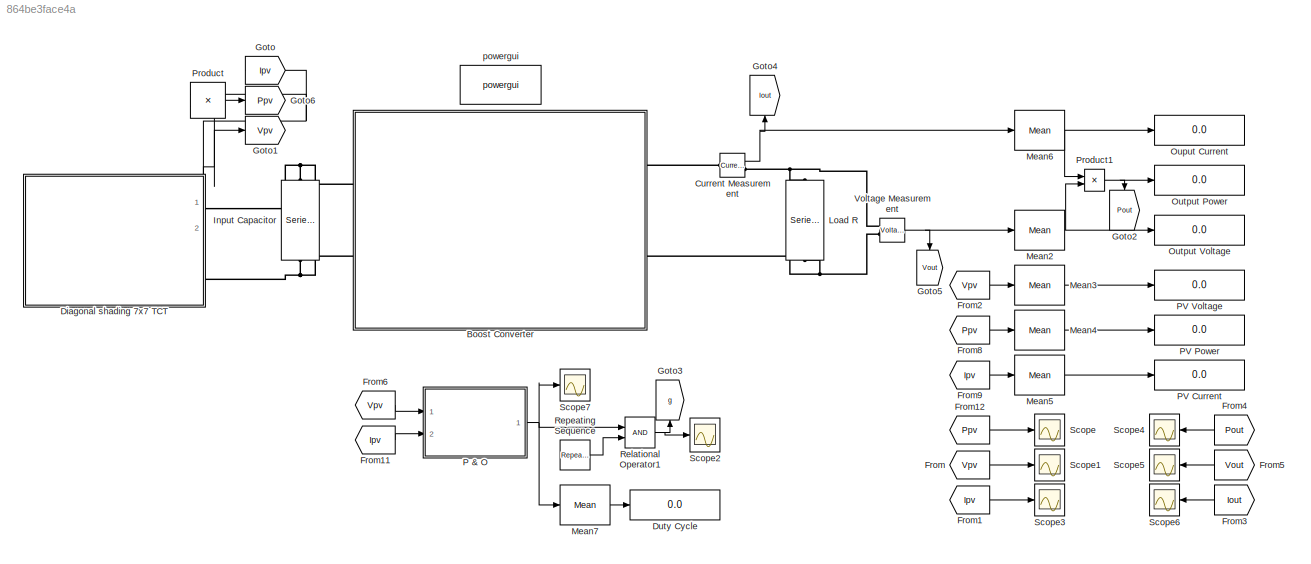
MODEL slx_864be3face4a
KIND model
CONFIG AbsTol = auto
CONFIG EnableMultiTasking = off
CONFIG FixedStep = 1e-6
CONFIG MaxStep = 1e-5
CONFIG MinStep = auto
CONFIG RelTol = 1e-3
CONFIG SampleTimeConstraint = Unconstrained
CONFIG SolverName = ode15s
CONFIG StartTime = 0.0
CONFIG StopTime = 1
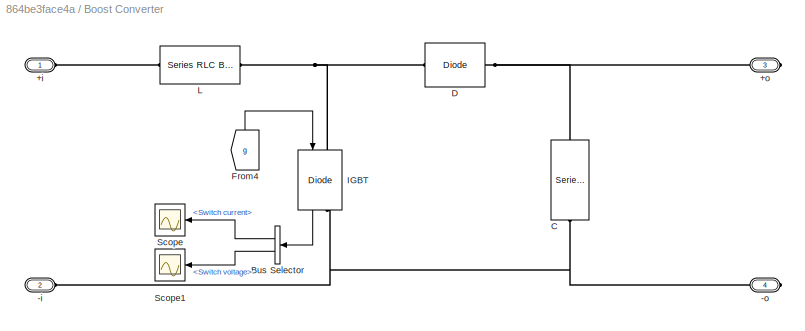
BLOCK [SubSystem] Boost Converter
  Ports = [0, 0, 0, 0, 0, 2, 2]
  RequestExecContextInheritance = off
BLOCK [PMIOPort] Boost Converter/+i
  Side = Left
BLOCK [PMIOPort] Boost Converter/+o
  Port = 3
  Side = Right
BLOCK [PMIOPort] Boost Converter/-i
  NameLocation = top
  Port = 2
  Side = Left
BLOCK [PMIOPort] Boost Converter/-o
  Port = 4
  Side = Right
BLOCK [BusSelector] Boost Converter/Bus Selector
  NameLocation = top
  OutputSignals = Switch current,Switch voltage
  Ports = [1, 2]
BLOCK [Reference] Boost Converter/C  REF=spsSeriesRLCBranchLib/Series RLC Branch
  NameLocation = left
  Ports = [0, 0, 0, 0, 0, 1, 1]
  SourceBlock = spsSeriesRLCBranchLib/Series RLC Branch
  SourceProductBaseCode = PS
  SourceType = Series RLC Branch
BLOCK [Reference] Boost Converter/D  REF=spsDiodeLib/Diode
  Ports = [0, 0, 0, 0, 0, 1, 1]
  SourceBlock = spsDiodeLib/Diode
  SourceProductBaseCode = PS
  SourceType = Diode
BLOCK [From] Boost Converter/From4
  GotoTag = g
  NameLocation = right
  TagVisibility = global
BLOCK [Reference] Boost Converter/IGBT  REF=spsIGBTDiodeLib/IGBT//Diode
  NameLocation = left
  Ports = [1, 1, 0, 0, 0, 1, 1]
  SourceBlock = spsIGBTDiodeLib/IGBT//Diode
  SourceProductBaseCode = PS
  SourceType = IGBT/Diode
BLOCK [Reference] Boost Converter/L  REF=spsSeriesRLCBranchLib/Series RLC Branch
  Ports = [0, 0, 0, 0, 0, 1, 1]
  SourceBlock = spsSeriesRLCBranchLib/Series RLC Branch
  SourceProductBaseCode = PS
  SourceType = Series RLC Branch
BLOCK [Scope] Boost Converter/Scope
  Floating = off
  NameLocation = top
  NumInputPorts = 1
  Ports = [1]
  ScopeSpecificationString = Simulink.scopes.TimeScopeBlockCfg('CurrentConfiguration', extmgr.ConfigurationSet(extmgr.Configuration('Core','General UI',true),extmgr.Configuration('Core','Source UI',true),extmgr.Configuration('Sources','WiredSimulink',true,'DataLoggingVariableName','Switch_I','DataLogging',true,'DataLoggingSaveFormat','StructureWithTime'),extmgr.Configuration('Visuals','Time Domain',true,'SerializedDisplays',{...<+1459ch>
BLOCK [Scope] Boost Converter/Scope1
  Floating = off
  NameLocation = top
  NumInputPorts = 1
  Ports = [1]
  ScopeSpecificationString = Simulink.scopes.TimeScopeBlockCfg('CurrentConfiguration', extmgr.ConfigurationSet(extmgr.Configuration('Core','General UI',true),extmgr.Configuration('Core','Source UI',true),extmgr.Configuration('Sources','WiredSimulink',true,'DataLoggingVariableName','Switch_V','DataLogging',true,'DataLoggingSaveFormat','StructureWithTime'),extmgr.Configuration('Visuals','Time Domain',true,'SerializedDisplays',{...<+1469ch>
BLOCK [Reference] Current Measurement  REF=spsCurrentMeasurementLib/Current Measurement
  Ports = [0, 1, 0, 0, 0, 1, 1]
  SourceBlock = spsCurrentMeasurementLib/Current Measurement
  SourceProductBaseCode = PS
  SourceType = Current Measurement
  UserDataPersistent = on
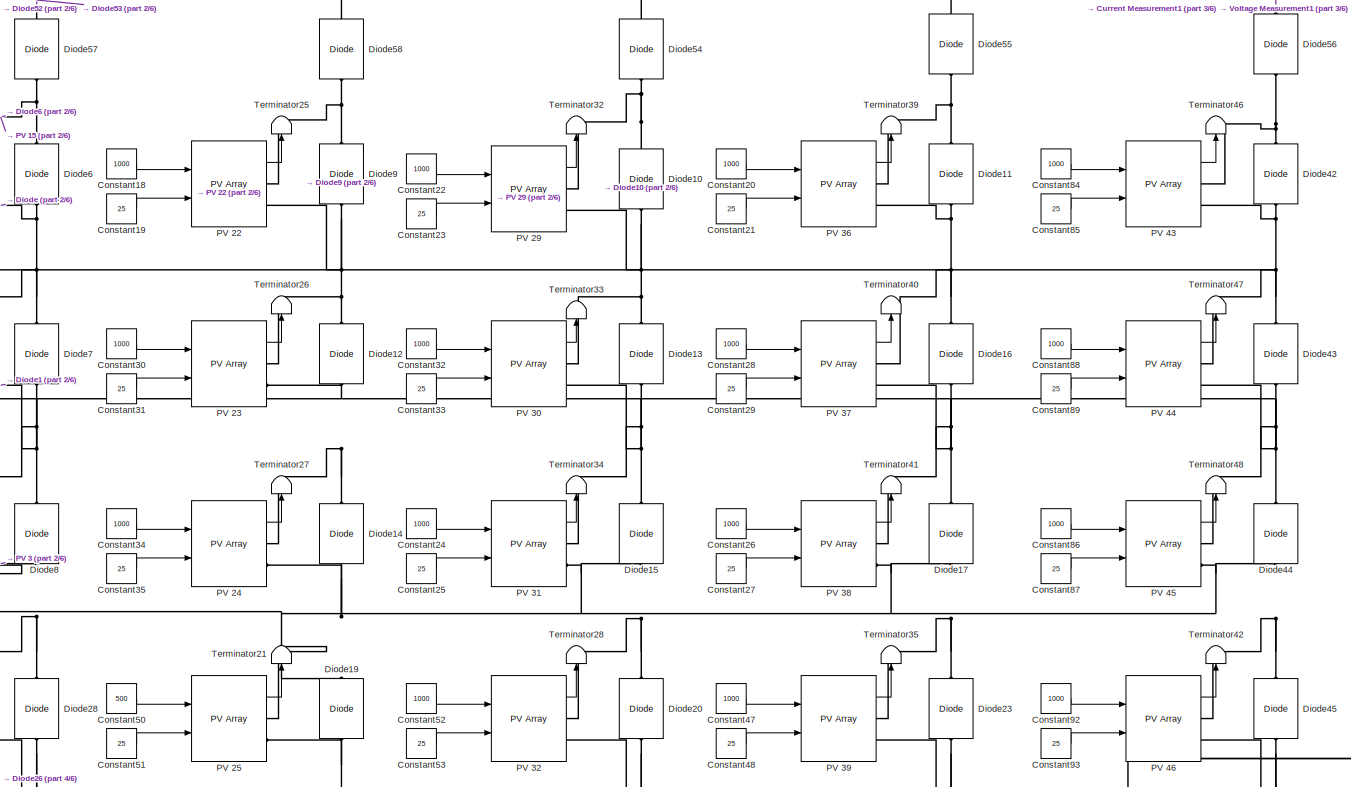
[diagram: Diagonal shading 7x7 TCT - part 1/6, top center region]
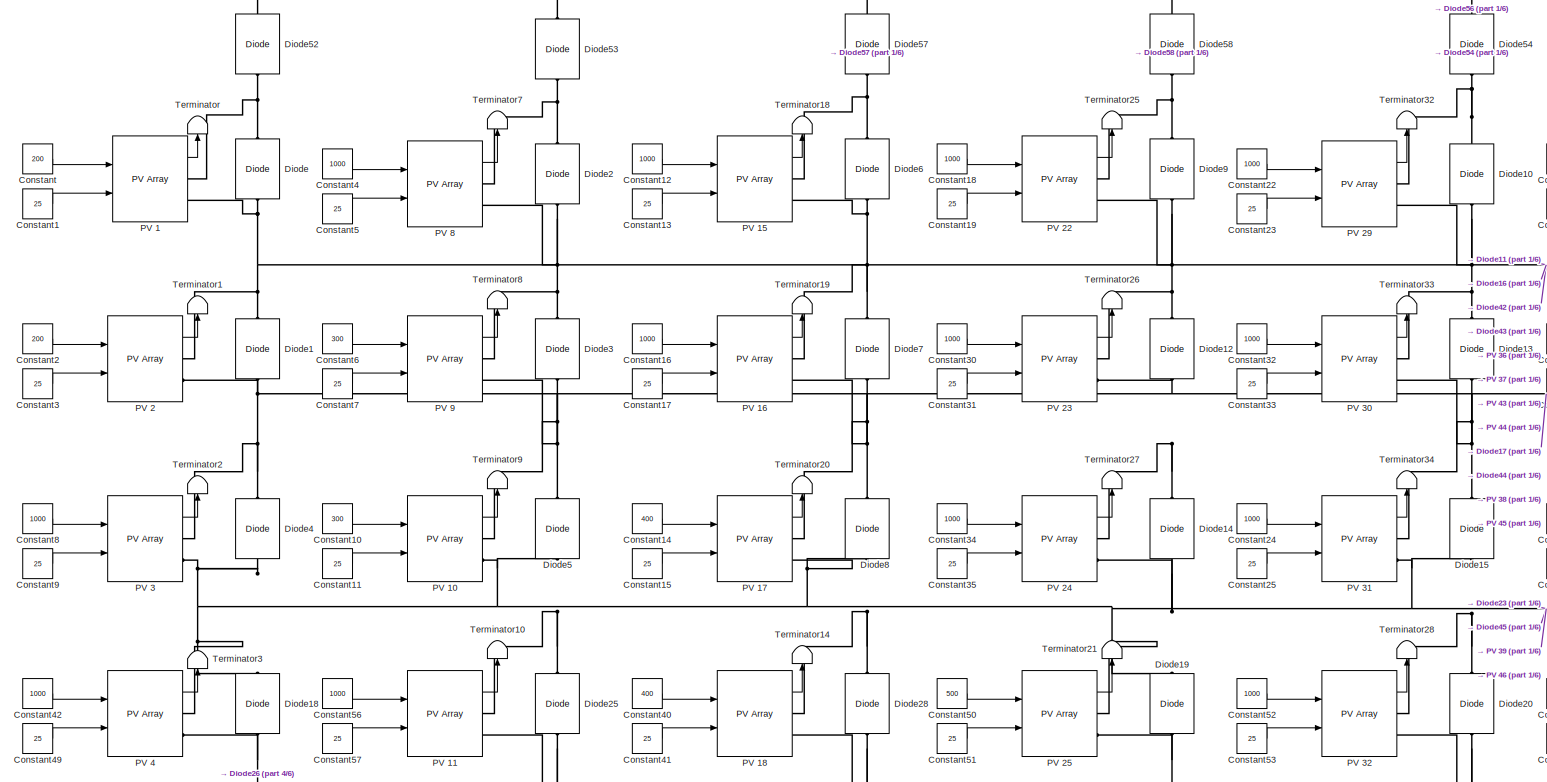
[diagram: Diagonal shading 7x7 TCT - part 2/6, top left region]
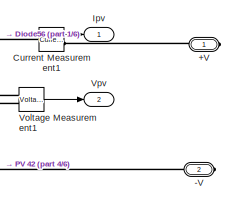
[diagram: Diagonal shading 7x7 TCT - part 3/6, middle right region]
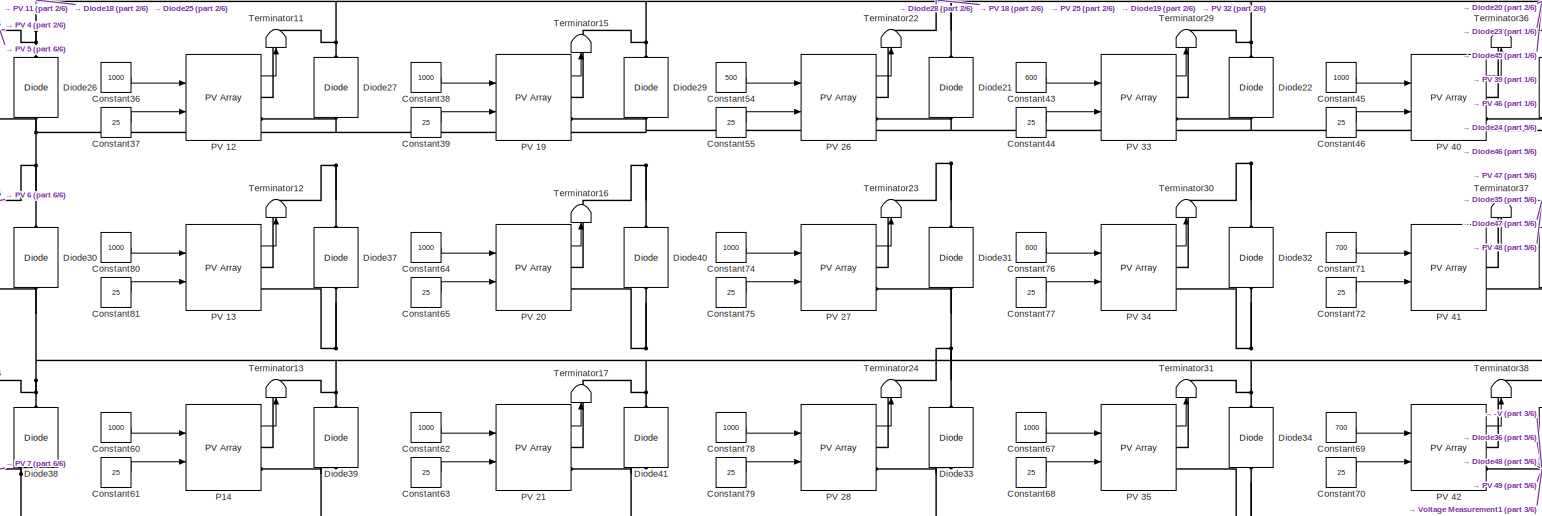
[diagram: Diagonal shading 7x7 TCT - part 4/6, bottom center region]
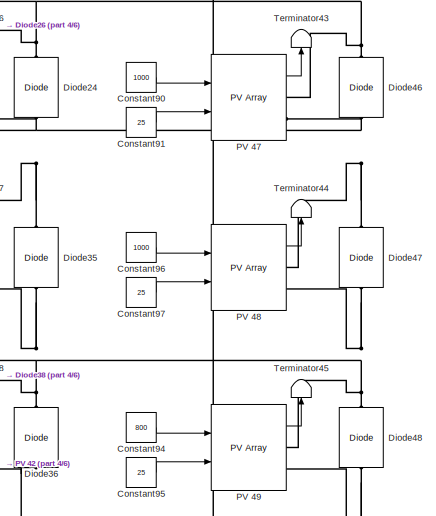
[diagram: Diagonal shading 7x7 TCT - part 5/6, bottom right region]
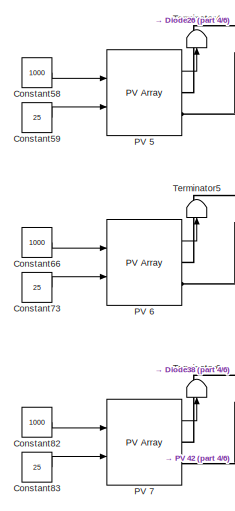
[diagram: Diagonal shading 7x7 TCT - part 6/6, bottom left region]
BLOCK [SubSystem] Diagonal shading 7x7 TCT
  PortSchema = {"entries":[{"content":{"sides":[{"content":{"connectorIds":[]},"type":"ConnectorPlacement.EquallySpacedRectSide","uuid":"2b1d5fe4-4caa-4b35-804e-a42f89d402b6"},{"content":{"connectorIds":["RConn1","RConn2"],"side":"RIGHT"},"type":"ConnectorPlacement.EquallySpacedRectSide","uuid":"1cc3aab2-123e-49fa-87cd-798c1955a822"},{"content":{"connectorIds":["Out1","Out2"],"side":"TOP"},"type":"ConnectorPlace...<+259ch>
  Ports = [0, 2, 0, 0, 0, 0, 2]
  RequestExecContextInheritance = off
BLOCK [Reference] Diagonal shading 7x7 TCT/	P14  REF=spsPVArrayLib/PV Array
  Ports = [2, 1, 0, 0, 0, 0, 2]
  SourceBlock = spsPVArrayLib/PV Array
  SourceProductBaseCode = PS
  SourceType = PV array
BLOCK [PMIOPort] Diagonal shading 7x7 TCT/+V
  Side = Right
BLOCK [PMIOPort] Diagonal shading 7x7 TCT/-V
  Port = 2
  Side = Right
BLOCK [Constant] Diagonal shading 7x7 TCT/Constant
  Value = 200
BLOCK [Constant] Diagonal shading 7x7 TCT/Constant1
  Value = 25
BLOCK [Constant] Diagonal shading 7x7 TCT/Constant10
  Value = 300
BLOCK [Constant] Diagonal shading 7x7 TCT/Constant11
  Value = 25
BLOCK [Constant] Diagonal shading 7x7 TCT/Constant12
  Value = 1000
BLOCK [Constant] Diagonal shading 7x7 TCT/Constant13
  Value = 25
BLOCK [Constant] Diagonal shading 7x7 TCT/Constant14
  Value = 400
BLOCK [Constant] Diagonal shading 7x7 TCT/Constant15
  Value = 25
BLOCK [Constant] Diagonal shading 7x7 TCT/Constant16
  Value = 1000
BLOCK [Constant] Diagonal shading 7x7 TCT/Constant17
  Value = 25
BLOCK [Constant] Diagonal shading 7x7 TCT/Constant18
  Value = 1000
BLOCK [Constant] Diagonal shading 7x7 TCT/Constant19
  Value = 25
BLOCK [Constant] Diagonal shading 7x7 TCT/Constant2
  Value = 200
BLOCK [Constant] Diagonal shading 7x7 TCT/Constant20
  Value = 1000
BLOCK [Constant] Diagonal shading 7x7 TCT/Constant21
  Value = 25
BLOCK [Constant] Diagonal shading 7x7 TCT/Constant22
  Value = 1000
BLOCK [Constant] Diagonal shading 7x7 TCT/Constant23
  Value = 25
BLOCK [Constant] Diagonal shading 7x7 TCT/Constant24
  Value = 1000
BLOCK [Constant] Diagonal shading 7x7 TCT/Constant25
  Value = 25
BLOCK [Constant] Diagonal shading 7x7 TCT/Constant26
  Value = 1000
BLOCK [Constant] Diagonal shading 7x7 TCT/Constant27
  Value = 25
BLOCK [Constant] Diagonal shading 7x7 TCT/Constant28
  Value = 1000
BLOCK [Constant] Diagonal shading 7x7 TCT/Constant29
  Value = 25
BLOCK [Constant] Diagonal shading 7x7 TCT/Constant3
  Value = 25
BLOCK [Constant] Diagonal shading 7x7 TCT/Constant30
  Value = 1000
BLOCK [Constant] Diagonal shading 7x7 TCT/Constant31
  Value = 25
BLOCK [Constant] Diagonal shading 7x7 TCT/Constant32
  Value = 1000
BLOCK [Constant] Diagonal shading 7x7 TCT/Constant33
  Value = 25
BLOCK [Constant] Diagonal shading 7x7 TCT/Constant34
  Value = 1000
BLOCK [Constant] Diagonal shading 7x7 TCT/Constant35
  Value = 25
BLOCK [Constant] Diagonal shading 7x7 TCT/Constant36
  Value = 1000
BLOCK [Constant] Diagonal shading 7x7 TCT/Constant37
  Value = 25
BLOCK [Constant] Diagonal shading 7x7 TCT/Constant38
  Value = 1000
BLOCK [Constant] Diagonal shading 7x7 TCT/Constant39
  Value = 25
BLOCK [Constant] Diagonal shading 7x7 TCT/Constant4
  Value = 1000
BLOCK [Constant] Diagonal shading 7x7 TCT/Constant40
  Value = 400
BLOCK [Constant] Diagonal shading 7x7 TCT/Constant41
  Value = 25
BLOCK [Constant] Diagonal shading 7x7 TCT/Constant42
  Value = 1000
BLOCK [Constant] Diagonal shading 7x7 TCT/Constant43
  Value = 600
BLOCK [Constant] Diagonal shading 7x7 TCT/Constant44
  Value = 25
BLOCK [Constant] Diagonal shading 7x7 TCT/Constant45
  Value = 1000
BLOCK [Constant] Diagonal shading 7x7 TCT/Constant46
  Value = 25
BLOCK [Constant] Diagonal shading 7x7 TCT/Constant47
  Value = 1000
BLOCK [Constant] Diagonal shading 7x7 TCT/Constant48
  Value = 25
BLOCK [Constant] Diagonal shading 7x7 TCT/Constant49
  Value = 25
BLOCK [Constant] Diagonal shading 7x7 TCT/Constant5
  Value = 25
BLOCK [Constant] Diagonal shading 7x7 TCT/Constant50
  Value = 500
BLOCK [Constant] Diagonal shading 7x7 TCT/Constant51
  Value = 25
BLOCK [Constant] Diagonal shading 7x7 TCT/Constant52
  Value = 1000
BLOCK [Constant] Diagonal shading 7x7 TCT/Constant53
  Value = 25
BLOCK [Constant] Diagonal shading 7x7 TCT/Constant54
  Value = 500
BLOCK [Constant] Diagonal shading 7x7 TCT/Constant55
  Value = 25
BLOCK [Constant] Diagonal shading 7x7 TCT/Constant56
  Value = 1000
BLOCK [Constant] Diagonal shading 7x7 TCT/Constant57
  Value = 25
BLOCK [Constant] Diagonal shading 7x7 TCT/Constant58
  Value = 1000
BLOCK [Constant] Diagonal shading 7x7 TCT/Constant59
  Value = 25
BLOCK [Constant] Diagonal shading 7x7 TCT/Constant6
  Value = 300
BLOCK [Constant] Diagonal shading 7x7 TCT/Constant60
  Value = 1000
BLOCK [Constant] Diagonal shading 7x7 TCT/Constant61
  Value = 25
BLOCK [Constant] Diagonal shading 7x7 TCT/Constant62
  Value = 1000
BLOCK [Constant] Diagonal shading 7x7 TCT/Constant63
  Value = 25
BLOCK [Constant] Diagonal shading 7x7 TCT/Constant64
  Value = 1000
BLOCK [Constant] Diagonal shading 7x7 TCT/Constant65
  Value = 25
BLOCK [Constant] Diagonal shading 7x7 TCT/Constant66
  Value = 1000
BLOCK [Constant] Diagonal shading 7x7 TCT/Constant67
  Value = 1000
BLOCK [Constant] Diagonal shading 7x7 TCT/Constant68
  Value = 25
BLOCK [Constant] Diagonal shading 7x7 TCT/Constant69
  Value = 700
BLOCK [Constant] Diagonal shading 7x7 TCT/Constant7
  Value = 25
BLOCK [Constant] Diagonal shading 7x7 TCT/Constant70
  Value = 25
BLOCK [Constant] Diagonal shading 7x7 TCT/Constant71
  Value = 700
BLOCK [Constant] Diagonal shading 7x7 TCT/Constant72
  Value = 25
BLOCK [Constant] Diagonal shading 7x7 TCT/Constant73
  Value = 25
BLOCK [Constant] Diagonal shading 7x7 TCT/Constant74
  Value = 1000
BLOCK [Constant] Diagonal shading 7x7 TCT/Constant75
  Value = 25
BLOCK [Constant] Diagonal shading 7x7 TCT/Constant76
  Value = 600
BLOCK [Constant] Diagonal shading 7x7 TCT/Constant77
  Value = 25
BLOCK [Constant] Diagonal shading 7x7 TCT/Constant78
  Value = 1000
BLOCK [Constant] Diagonal shading 7x7 TCT/Constant79
  Value = 25
BLOCK [Constant] Diagonal shading 7x7 TCT/Constant8
  Value = 1000
BLOCK [Constant] Diagonal shading 7x7 TCT/Constant80
  Value = 1000
BLOCK [Constant] Diagonal shading 7x7 TCT/Constant81
  Value = 25
BLOCK [Constant] Diagonal shading 7x7 TCT/Constant82
  Value = 1000
BLOCK [Constant] Diagonal shading 7x7 TCT/Constant83
  Value = 25
BLOCK [Constant] Diagonal shading 7x7 TCT/Constant84
  Value = 1000
BLOCK [Constant] Diagonal shading 7x7 TCT/Constant85
  Value = 25
BLOCK [Constant] Diagonal shading 7x7 TCT/Constant86
  Value = 1000
BLOCK [Constant] Diagonal shading 7x7 TCT/Constant87
  Value = 25
BLOCK [Constant] Diagonal shading 7x7 TCT/Constant88
  Value = 1000
BLOCK [Constant] Diagonal shading 7x7 TCT/Constant89
  Value = 25
BLOCK [Constant] Diagonal shading 7x7 TCT/Constant9
  Value = 25
BLOCK [Constant] Diagonal shading 7x7 TCT/Constant90
  Value = 1000
BLOCK [Constant] Diagonal shading 7x7 TCT/Constant91
  Value = 25
BLOCK [Constant] Diagonal shading 7x7 TCT/Constant92
  Value = 1000
BLOCK [Constant] Diagonal shading 7x7 TCT/Constant93
  Value = 25
BLOCK [Constant] Diagonal shading 7x7 TCT/Constant94
  Value = 800
BLOCK [Constant] Diagonal shading 7x7 TCT/Constant95
  Value = 25
BLOCK [Constant] Diagonal shading 7x7 TCT/Constant96
  Value = 1000
BLOCK [Constant] Diagonal shading 7x7 TCT/Constant97
  Value = 25
BLOCK [Reference] Diagonal shading 7x7 TCT/Current Measurement1  REF=spsCurrentMeasurementLib/Current Measurement
  Ports = [0, 1, 0, 0, 0, 1, 1]
  SourceBlock = spsCurrentMeasurementLib/Current Measurement
  SourceProductBaseCode = PS
  SourceType = Current Measurement
  UserDataPersistent = on
BLOCK [Reference] Diagonal shading 7x7 TCT/Diode  REF=spsDiodeLib/Diode
  NameLocation = right
  Ports = [0, 0, 0, 0, 0, 1, 1]
  SourceBlock = spsDiodeLib/Diode
  SourceProductBaseCode = PS
  SourceType = Diode
BLOCK [Reference] Diagonal shading 7x7 TCT/Diode1  REF=spsDiodeLib/Diode
  NameLocation = right
  Ports = [0, 0, 0, 0, 0, 1, 1]
  SourceBlock = spsDiodeLib/Diode
  SourceProductBaseCode = PS
  SourceType = Diode
BLOCK [Reference] Diagonal shading 7x7 TCT/Diode10  REF=spsDiodeLib/Diode
  NameLocation = right
  Ports = [0, 0, 0, 0, 0, 1, 1]
  SourceBlock = spsDiodeLib/Diode
  SourceProductBaseCode = PS
  SourceType = Diode
BLOCK [Reference] Diagonal shading 7x7 TCT/Diode11  REF=spsDiodeLib/Diode
  NameLocation = right
  Ports = [0, 0, 0, 0, 0, 1, 1]
  SourceBlock = spsDiodeLib/Diode
  SourceProductBaseCode = PS
  SourceType = Diode
BLOCK [Reference] Diagonal shading 7x7 TCT/Diode12  REF=spsDiodeLib/Diode
  NameLocation = right
  Ports = [0, 0, 0, 0, 0, 1, 1]
  SourceBlock = spsDiodeLib/Diode
  SourceProductBaseCode = PS
  SourceType = Diode
BLOCK [Reference] Diagonal shading 7x7 TCT/Diode13  REF=spsDiodeLib/Diode
  NameLocation = right
  Ports = [0, 0, 0, 0, 0, 1, 1]
  SourceBlock = spsDiodeLib/Diode
  SourceProductBaseCode = PS
  SourceType = Diode
BLOCK [Reference] Diagonal shading 7x7 TCT/Diode14  REF=spsDiodeLib/Diode
  NameLocation = right
  Ports = [0, 0, 0, 0, 0, 1, 1]
  SourceBlock = spsDiodeLib/Diode
  SourceProductBaseCode = PS
  SourceType = Diode
BLOCK [Reference] Diagonal shading 7x7 TCT/Diode15  REF=spsDiodeLib/Diode
  NameLocation = right
  Ports = [0, 0, 0, 0, 0, 1, 1]
  SourceBlock = spsDiodeLib/Diode
  SourceProductBaseCode = PS
  SourceType = Diode
BLOCK [Reference] Diagonal shading 7x7 TCT/Diode16  REF=spsDiodeLib/Diode
  NameLocation = right
  Ports = [0, 0, 0, 0, 0, 1, 1]
  SourceBlock = spsDiodeLib/Diode
  SourceProductBaseCode = PS
  SourceType = Diode
BLOCK [Reference] Diagonal shading 7x7 TCT/Diode17  REF=spsDiodeLib/Diode
  NameLocation = right
  Ports = [0, 0, 0, 0, 0, 1, 1]
  SourceBlock = spsDiodeLib/Diode
  SourceProductBaseCode = PS
  SourceType = Diode
BLOCK [Reference] Diagonal shading 7x7 TCT/Diode18  REF=spsDiodeLib/Diode
  NameLocation = right
  Ports = [0, 0, 0, 0, 0, 1, 1]
  SourceBlock = spsDiodeLib/Diode
  SourceProductBaseCode = PS
  SourceType = Diode
BLOCK [Reference] Diagonal shading 7x7 TCT/Diode19  REF=spsDiodeLib/Diode
  NameLocation = right
  Ports = [0, 0, 0, 0, 0, 1, 1]
  SourceBlock = spsDiodeLib/Diode
  SourceProductBaseCode = PS
  SourceType = Diode
BLOCK [Reference] Diagonal shading 7x7 TCT/Diode2  REF=spsDiodeLib/Diode
  NameLocation = right
  Ports = [0, 0, 0, 0, 0, 1, 1]
  SourceBlock = spsDiodeLib/Diode
  SourceProductBaseCode = PS
  SourceType = Diode
BLOCK [Reference] Diagonal shading 7x7 TCT/Diode20  REF=spsDiodeLib/Diode
  NameLocation = right
  Ports = [0, 0, 0, 0, 0, 1, 1]
  SourceBlock = spsDiodeLib/Diode
  SourceProductBaseCode = PS
  SourceType = Diode
BLOCK [Reference] Diagonal shading 7x7 TCT/Diode21  REF=spsDiodeLib/Diode
  NameLocation = right
  Ports = [0, 0, 0, 0, 0, 1, 1]
  SourceBlock = spsDiodeLib/Diode
  SourceProductBaseCode = PS
  SourceType = Diode
BLOCK [Reference] Diagonal shading 7x7 TCT/Diode22  REF=spsDiodeLib/Diode
  NameLocation = right
  Ports = [0, 0, 0, 0, 0, 1, 1]
  SourceBlock = spsDiodeLib/Diode
  SourceProductBaseCode = PS
  SourceType = Diode
BLOCK [Reference] Diagonal shading 7x7 TCT/Diode23  REF=spsDiodeLib/Diode
  NameLocation = right
  Ports = [0, 0, 0, 0, 0, 1, 1]
  SourceBlock = spsDiodeLib/Diode
  SourceProductBaseCode = PS
  SourceType = Diode
BLOCK [Reference] Diagonal shading 7x7 TCT/Diode24  REF=spsDiodeLib/Diode
  NameLocation = right
  Ports = [0, 0, 0, 0, 0, 1, 1]
  SourceBlock = spsDiodeLib/Diode
  SourceProductBaseCode = PS
  SourceType = Diode
BLOCK [Reference] Diagonal shading 7x7 TCT/Diode25  REF=spsDiodeLib/Diode
  NameLocation = right
  Ports = [0, 0, 0, 0, 0, 1, 1]
  SourceBlock = spsDiodeLib/Diode
  SourceProductBaseCode = PS
  SourceType = Diode
BLOCK [Reference] Diagonal shading 7x7 TCT/Diode26  REF=spsDiodeLib/Diode
  NameLocation = right
  Ports = [0, 0, 0, 0, 0, 1, 1]
  SourceBlock = spsDiodeLib/Diode
  SourceProductBaseCode = PS
  SourceType = Diode
BLOCK [Reference] Diagonal shading 7x7 TCT/Diode27  REF=spsDiodeLib/Diode
  NameLocation = right
  Ports = [0, 0, 0, 0, 0, 1, 1]
  SourceBlock = spsDiodeLib/Diode
  SourceProductBaseCode = PS
  SourceType = Diode
BLOCK [Reference] Diagonal shading 7x7 TCT/Diode28  REF=spsDiodeLib/Diode
  NameLocation = right
  Ports = [0, 0, 0, 0, 0, 1, 1]
  SourceBlock = spsDiodeLib/Diode
  SourceProductBaseCode = PS
  SourceType = Diode
BLOCK [Reference] Diagonal shading 7x7 TCT/Diode29  REF=spsDiodeLib/Diode
  NameLocation = right
  Ports = [0, 0, 0, 0, 0, 1, 1]
  SourceBlock = spsDiodeLib/Diode
  SourceProductBaseCode = PS
  SourceType = Diode
BLOCK [Reference] Diagonal shading 7x7 TCT/Diode3  REF=spsDiodeLib/Diode
  NameLocation = right
  Ports = [0, 0, 0, 0, 0, 1, 1]
  SourceBlock = spsDiodeLib/Diode
  SourceProductBaseCode = PS
  SourceType = Diode
BLOCK [Reference] Diagonal shading 7x7 TCT/Diode30  REF=spsDiodeLib/Diode
  NameLocation = right
  Ports = [0, 0, 0, 0, 0, 1, 1]
  SourceBlock = spsDiodeLib/Diode
  SourceProductBaseCode = PS
  SourceType = Diode
BLOCK [Reference] Diagonal shading 7x7 TCT/Diode31  REF=spsDiodeLib/Diode
  NameLocation = right
  Ports = [0, 0, 0, 0, 0, 1, 1]
  SourceBlock = spsDiodeLib/Diode
  SourceProductBaseCode = PS
  SourceType = Diode
BLOCK [Reference] Diagonal shading 7x7 TCT/Diode32  REF=spsDiodeLib/Diode
  NameLocation = right
  Ports = [0, 0, 0, 0, 0, 1, 1]
  SourceBlock = spsDiodeLib/Diode
  SourceProductBaseCode = PS
  SourceType = Diode
BLOCK [Reference] Diagonal shading 7x7 TCT/Diode33  REF=spsDiodeLib/Diode
  NameLocation = right
  Ports = [0, 0, 0, 0, 0, 1, 1]
  SourceBlock = spsDiodeLib/Diode
  SourceProductBaseCode = PS
  SourceType = Diode
BLOCK [Reference] Diagonal shading 7x7 TCT/Diode34  REF=spsDiodeLib/Diode
  NameLocation = right
  Ports = [0, 0, 0, 0, 0, 1, 1]
  SourceBlock = spsDiodeLib/Diode
  SourceProductBaseCode = PS
  SourceType = Diode
BLOCK [Reference] Diagonal shading 7x7 TCT/Diode35  REF=spsDiodeLib/Diode
  NameLocation = right
  Ports = [0, 0, 0, 0, 0, 1, 1]
  SourceBlock = spsDiodeLib/Diode
  SourceProductBaseCode = PS
  SourceType = Diode
BLOCK [Reference] Diagonal shading 7x7 TCT/Diode36  REF=spsDiodeLib/Diode
  NameLocation = right
  Ports = [0, 0, 0, 0, 0, 1, 1]
  SourceBlock = spsDiodeLib/Diode
  SourceProductBaseCode = PS
  SourceType = Diode
BLOCK [Reference] Diagonal shading 7x7 TCT/Diode37  REF=spsDiodeLib/Diode
  NameLocation = right
  Ports = [0, 0, 0, 0, 0, 1, 1]
  SourceBlock = spsDiodeLib/Diode
  SourceProductBaseCode = PS
  SourceType = Diode
BLOCK [Reference] Diagonal shading 7x7 TCT/Diode38  REF=spsDiodeLib/Diode
  NameLocation = right
  Ports = [0, 0, 0, 0, 0, 1, 1]
  SourceBlock = spsDiodeLib/Diode
  SourceProductBaseCode = PS
  SourceType = Diode
BLOCK [Reference] Diagonal shading 7x7 TCT/Diode39  REF=spsDiodeLib/Diode
  NameLocation = right
  Ports = [0, 0, 0, 0, 0, 1, 1]
  SourceBlock = spsDiodeLib/Diode
  SourceProductBaseCode = PS
  SourceType = Diode
BLOCK [Reference] Diagonal shading 7x7 TCT/Diode4  REF=spsDiodeLib/Diode
  NameLocation = right
  Ports = [0, 0, 0, 0, 0, 1, 1]
  SourceBlock = spsDiodeLib/Diode
  SourceProductBaseCode = PS
  SourceType = Diode
BLOCK [Reference] Diagonal shading 7x7 TCT/Diode40  REF=spsDiodeLib/Diode
  NameLocation = right
  Ports = [0, 0, 0, 0, 0, 1, 1]
  SourceBlock = spsDiodeLib/Diode
  SourceProductBaseCode = PS
  SourceType = Diode
BLOCK [Reference] Diagonal shading 7x7 TCT/Diode41  REF=spsDiodeLib/Diode
  NameLocation = right
  Ports = [0, 0, 0, 0, 0, 1, 1]
  SourceBlock = spsDiodeLib/Diode
  SourceProductBaseCode = PS
  SourceType = Diode
BLOCK [Reference] Diagonal shading 7x7 TCT/Diode42  REF=spsDiodeLib/Diode
  NameLocation = right
  Ports = [0, 0, 0, 0, 0, 1, 1]
  SourceBlock = spsDiodeLib/Diode
  SourceProductBaseCode = PS
  SourceType = Diode
BLOCK [Reference] Diagonal shading 7x7 TCT/Diode43  REF=spsDiodeLib/Diode
  NameLocation = right
  Ports = [0, 0, 0, 0, 0, 1, 1]
  SourceBlock = spsDiodeLib/Diode
  SourceProductBaseCode = PS
  SourceType = Diode
BLOCK [Reference] Diagonal shading 7x7 TCT/Diode44  REF=spsDiodeLib/Diode
  NameLocation = right
  Ports = [0, 0, 0, 0, 0, 1, 1]
  SourceBlock = spsDiodeLib/Diode
  SourceProductBaseCode = PS
  SourceType = Diode
BLOCK [Reference] Diagonal shading 7x7 TCT/Diode45  REF=spsDiodeLib/Diode
  NameLocation = right
  Ports = [0, 0, 0, 0, 0, 1, 1]
  SourceBlock = spsDiodeLib/Diode
  SourceProductBaseCode = PS
  SourceType = Diode
BLOCK [Reference] Diagonal shading 7x7 TCT/Diode46  REF=spsDiodeLib/Diode
  NameLocation = right
  Ports = [0, 0, 0, 0, 0, 1, 1]
  SourceBlock = spsDiodeLib/Diode
  SourceProductBaseCode = PS
  SourceType = Diode
BLOCK [Reference] Diagonal shading 7x7 TCT/Diode47  REF=spsDiodeLib/Diode
  NameLocation = right
  Ports = [0, 0, 0, 0, 0, 1, 1]
  SourceBlock = spsDiodeLib/Diode
  SourceProductBaseCode = PS
  SourceType = Diode
BLOCK [Reference] Diagonal shading 7x7 TCT/Diode48  REF=spsDiodeLib/Diode
  NameLocation = right
  Ports = [0, 0, 0, 0, 0, 1, 1]
  SourceBlock = spsDiodeLib/Diode
  SourceProductBaseCode = PS
  SourceType = Diode
BLOCK [Reference] Diagonal shading 7x7 TCT/Diode5  REF=spsDiodeLib/Diode
  NameLocation = right
  Ports = [0, 0, 0, 0, 0, 1, 1]
  SourceBlock = spsDiodeLib/Diode
  SourceProductBaseCode = PS
  SourceType = Diode
BLOCK [Reference] Diagonal shading 7x7 TCT/Diode52  REF=spsDiodeLib/Diode
  NameLocation = right
  Ports = [0, 0, 0, 0, 0, 1, 1]
  SourceBlock = spsDiodeLib/Diode
  SourceProductBaseCode = PS
  SourceType = Diode
BLOCK [Reference] Diagonal shading 7x7 TCT/Diode53  REF=spsDiodeLib/Diode
  NameLocation = right
  Ports = [0, 0, 0, 0, 0, 1, 1]
  SourceBlock = spsDiodeLib/Diode
  SourceProductBaseCode = PS
  SourceType = Diode
BLOCK [Reference] Diagonal shading 7x7 TCT/Diode54  REF=spsDiodeLib/Diode
  NameLocation = right
  Ports = [0, 0, 0, 0, 0, 1, 1]
  SourceBlock = spsDiodeLib/Diode
  SourceProductBaseCode = PS
  SourceType = Diode
BLOCK [Reference] Diagonal shading 7x7 TCT/Diode55  REF=spsDiodeLib/Diode
  NameLocation = right
  Ports = [0, 0, 0, 0, 0, 1, 1]
  SourceBlock = spsDiodeLib/Diode
  SourceProductBaseCode = PS
  SourceType = Diode
BLOCK [Reference] Diagonal shading 7x7 TCT/Diode56  REF=spsDiodeLib/Diode
  NameLocation = right
  Ports = [0, 0, 0, 0, 0, 1, 1]
  SourceBlock = spsDiodeLib/Diode
  SourceProductBaseCode = PS
  SourceType = Diode
BLOCK [Reference] Diagonal shading 7x7 TCT/Diode57  REF=spsDiodeLib/Diode
  NameLocation = right
  Ports = [0, 0, 0, 0, 0, 1, 1]
  SourceBlock = spsDiodeLib/Diode
  SourceProductBaseCode = PS
  SourceType = Diode
BLOCK [Reference] Diagonal shading 7x7 TCT/Diode58  REF=spsDiodeLib/Diode
  NameLocation = right
  Ports = [0, 0, 0, 0, 0, 1, 1]
  SourceBlock = spsDiodeLib/Diode
  SourceProductBaseCode = PS
  SourceType = Diode
BLOCK [Reference] Diagonal shading 7x7 TCT/Diode6  REF=spsDiodeLib/Diode
  NameLocation = right
  Ports = [0, 0, 0, 0, 0, 1, 1]
  SourceBlock = spsDiodeLib/Diode
  SourceProductBaseCode = PS
  SourceType = Diode
BLOCK [Reference] Diagonal shading 7x7 TCT/Diode7  REF=spsDiodeLib/Diode
  NameLocation = right
  Ports = [0, 0, 0, 0, 0, 1, 1]
  SourceBlock = spsDiodeLib/Diode
  SourceProductBaseCode = PS
  SourceType = Diode
BLOCK [Reference] Diagonal shading 7x7 TCT/Diode8  REF=spsDiodeLib/Diode
  NameLocation = right
  Ports = [0, 0, 0, 0, 0, 1, 1]
  SourceBlock = spsDiodeLib/Diode
  SourceProductBaseCode = PS
  SourceType = Diode
BLOCK [Reference] Diagonal shading 7x7 TCT/Diode9  REF=spsDiodeLib/Diode
  NameLocation = right
  Ports = [0, 0, 0, 0, 0, 1, 1]
  SourceBlock = spsDiodeLib/Diode
  SourceProductBaseCode = PS
  SourceType = Diode
BLOCK [Outport] Diagonal shading 7x7 TCT/Ipv
  NameLocation = top
BLOCK [Reference] Diagonal shading 7x7 TCT/PV  39  REF=spsPVArrayLib/PV Array
  Ports = [2, 1, 0, 0, 0, 0, 2]
  SourceBlock = spsPVArrayLib/PV Array
  SourceProductBaseCode = PS
  SourceType = PV array
BLOCK [Reference] Diagonal shading 7x7 TCT/PV 1  REF=spsPVArrayLib/PV Array
  Ports = [2, 1, 0, 0, 0, 0, 2]
  SourceBlock = spsPVArrayLib/PV Array
  SourceProductBaseCode = PS
  SourceType = PV array
BLOCK [Reference] Diagonal shading 7x7 TCT/PV 10  REF=spsPVArrayLib/PV Array
  Ports = [2, 1, 0, 0, 0, 0, 2]
  SourceBlock = spsPVArrayLib/PV Array
  SourceProductBaseCode = PS
  SourceType = PV array
BLOCK [Reference] Diagonal shading 7x7 TCT/PV 11  REF=spsPVArrayLib/PV Array
  Ports = [2, 1, 0, 0, 0, 0, 2]
  SourceBlock = spsPVArrayLib/PV Array
  SourceProductBaseCode = PS
  SourceType = PV array
BLOCK [Reference] Diagonal shading 7x7 TCT/PV 12  REF=spsPVArrayLib/PV Array
  Ports = [2, 1, 0, 0, 0, 0, 2]
  SourceBlock = spsPVArrayLib/PV Array
  SourceProductBaseCode = PS
  SourceType = PV array
BLOCK [Reference] Diagonal shading 7x7 TCT/PV 13  REF=spsPVArrayLib/PV Array
  Ports = [2, 1, 0, 0, 0, 0, 2]
  SourceBlock = spsPVArrayLib/PV Array
  SourceProductBaseCode = PS
  SourceType = PV array
BLOCK [Reference] Diagonal shading 7x7 TCT/PV 15  REF=spsPVArrayLib/PV Array
  Ports = [2, 1, 0, 0, 0, 0, 2]
  SourceBlock = spsPVArrayLib/PV Array
  SourceProductBaseCode = PS
  SourceType = PV array
BLOCK [Reference] Diagonal shading 7x7 TCT/PV 16  REF=spsPVArrayLib/PV Array
  Ports = [2, 1, 0, 0, 0, 0, 2]
  SourceBlock = spsPVArrayLib/PV Array
  SourceProductBaseCode = PS
  SourceType = PV array
BLOCK [Reference] Diagonal shading 7x7 TCT/PV 17  REF=spsPVArrayLib/PV Array
  Ports = [2, 1, 0, 0, 0, 0, 2]
  SourceBlock = spsPVArrayLib/PV Array
  SourceProductBaseCode = PS
  SourceType = PV array
BLOCK [Reference] Diagonal shading 7x7 TCT/PV 18  REF=spsPVArrayLib/PV Array
  Ports = [2, 1, 0, 0, 0, 0, 2]
  SourceBlock = spsPVArrayLib/PV Array
  SourceProductBaseCode = PS
  SourceType = PV array
BLOCK [Reference] Diagonal shading 7x7 TCT/PV 19  REF=spsPVArrayLib/PV Array
  Ports = [2, 1, 0, 0, 0, 0, 2]
  SourceBlock = spsPVArrayLib/PV Array
  SourceProductBaseCode = PS
  SourceType = PV array
BLOCK [Reference] Diagonal shading 7x7 TCT/PV 2  REF=spsPVArrayLib/PV Array
  Ports = [2, 1, 0, 0, 0, 0, 2]
  SourceBlock = spsPVArrayLib/PV Array
  SourceProductBaseCode = PS
  SourceType = PV array
BLOCK [Reference] Diagonal shading 7x7 TCT/PV 20  REF=spsPVArrayLib/PV Array
  Ports = [2, 1, 0, 0, 0, 0, 2]
  SourceBlock = spsPVArrayLib/PV Array
  SourceProductBaseCode = PS
  SourceType = PV array
BLOCK [Reference] Diagonal shading 7x7 TCT/PV 21  REF=spsPVArrayLib/PV Array
  Ports = [2, 1, 0, 0, 0, 0, 2]
  SourceBlock = spsPVArrayLib/PV Array
  SourceProductBaseCode = PS
  SourceType = PV array
BLOCK [Reference] Diagonal shading 7x7 TCT/PV 22  REF=spsPVArrayLib/PV Array
  Ports = [2, 1, 0, 0, 0, 0, 2]
  SourceBlock = spsPVArrayLib/PV Array
  SourceProductBaseCode = PS
  SourceType = PV array
BLOCK [Reference] Diagonal shading 7x7 TCT/PV 23  REF=spsPVArrayLib/PV Array
  Ports = [2, 1, 0, 0, 0, 0, 2]
  SourceBlock = spsPVArrayLib/PV Array
  SourceProductBaseCode = PS
  SourceType = PV array
BLOCK [Reference] Diagonal shading 7x7 TCT/PV 24  REF=spsPVArrayLib/PV Array
  Ports = [2, 1, 0, 0, 0, 0, 2]
  SourceBlock = spsPVArrayLib/PV Array
  SourceProductBaseCode = PS
  SourceType = PV array
BLOCK [Reference] Diagonal shading 7x7 TCT/PV 25  REF=spsPVArrayLib/PV Array
  Ports = [2, 1, 0, 0, 0, 0, 2]
  SourceBlock = spsPVArrayLib/PV Array
  SourceProductBaseCode = PS
  SourceType = PV array
BLOCK [Reference] Diagonal shading 7x7 TCT/PV 26  REF=spsPVArrayLib/PV Array
  Ports = [2, 1, 0, 0, 0, 0, 2]
  SourceBlock = spsPVArrayLib/PV Array
  SourceProductBaseCode = PS
  SourceType = PV array
BLOCK [Reference] Diagonal shading 7x7 TCT/PV 27  REF=spsPVArrayLib/PV Array
  Ports = [2, 1, 0, 0, 0, 0, 2]
  SourceBlock = spsPVArrayLib/PV Array
  SourceProductBaseCode = PS
  SourceType = PV array
BLOCK [Reference] Diagonal shading 7x7 TCT/PV 28  REF=spsPVArrayLib/PV Array
  Ports = [2, 1, 0, 0, 0, 0, 2]
  SourceBlock = spsPVArrayLib/PV Array
  SourceProductBaseCode = PS
  SourceType = PV array
BLOCK [Reference] Diagonal shading 7x7 TCT/PV 29  REF=spsPVArrayLib/PV Array
  Ports = [2, 1, 0, 0, 0, 0, 2]
  SourceBlock = spsPVArrayLib/PV Array
  SourceProductBaseCode = PS
  SourceType = PV array
BLOCK [Reference] Diagonal shading 7x7 TCT/PV 3  REF=spsPVArrayLib/PV Array
  Ports = [2, 1, 0, 0, 0, 0, 2]
  SourceBlock = spsPVArrayLib/PV Array
  SourceProductBaseCode = PS
  SourceType = PV array
BLOCK [Reference] Diagonal shading 7x7 TCT/PV 30  REF=spsPVArrayLib/PV Array
  Ports = [2, 1, 0, 0, 0, 0, 2]
  SourceBlock = spsPVArrayLib/PV Array
  SourceProductBaseCode = PS
  SourceType = PV array
BLOCK [Reference] Diagonal shading 7x7 TCT/PV 31  REF=spsPVArrayLib/PV Array
  Ports = [2, 1, 0, 0, 0, 0, 2]
  SourceBlock = spsPVArrayLib/PV Array
  SourceProductBaseCode = PS
  SourceType = PV array
BLOCK [Reference] Diagonal shading 7x7 TCT/PV 32  REF=spsPVArrayLib/PV Array
  Ports = [2, 1, 0, 0, 0, 0, 2]
  SourceBlock = spsPVArrayLib/PV Array
  SourceProductBaseCode = PS
  SourceType = PV array
BLOCK [Reference] Diagonal shading 7x7 TCT/PV 33  REF=spsPVArrayLib/PV Array
  Ports = [2, 1, 0, 0, 0, 0, 2]
  SourceBlock = spsPVArrayLib/PV Array
  SourceProductBaseCode = PS
  SourceType = PV array
BLOCK [Reference] Diagonal shading 7x7 TCT/PV 34  REF=spsPVArrayLib/PV Array
  Ports = [2, 1, 0, 0, 0, 0, 2]
  SourceBlock = spsPVArrayLib/PV Array
  SourceProductBaseCode = PS
  SourceType = PV array
BLOCK [Reference] Diagonal shading 7x7 TCT/PV 35  REF=spsPVArrayLib/PV Array
  Ports = [2, 1, 0, 0, 0, 0, 2]
  SourceBlock = spsPVArrayLib/PV Array
  SourceProductBaseCode = PS
  SourceType = PV array
BLOCK [Reference] Diagonal shading 7x7 TCT/PV 36  REF=spsPVArrayLib/PV Array
  Ports = [2, 1, 0, 0, 0, 0, 2]
  SourceBlock = spsPVArrayLib/PV Array
  SourceProductBaseCode = PS
  SourceType = PV array
BLOCK [Reference] Diagonal shading 7x7 TCT/PV 37  REF=spsPVArrayLib/PV Array
  Ports = [2, 1, 0, 0, 0, 0, 2]
  SourceBlock = spsPVArrayLib/PV Array
  SourceProductBaseCode = PS
  SourceType = PV array
BLOCK [Reference] Diagonal shading 7x7 TCT/PV 38  REF=spsPVArrayLib/PV Array
  Ports = [2, 1, 0, 0, 0, 0, 2]
  SourceBlock = spsPVArrayLib/PV Array
  SourceProductBaseCode = PS
  SourceType = PV array
BLOCK [Reference] Diagonal shading 7x7 TCT/PV 4  REF=spsPVArrayLib/PV Array
  Ports = [2, 1, 0, 0, 0, 0, 2]
  SourceBlock = spsPVArrayLib/PV Array
  SourceProductBaseCode = PS
  SourceType = PV array
BLOCK [Reference] Diagonal shading 7x7 TCT/PV 40  REF=spsPVArrayLib/PV Array
  Ports = [2, 1, 0, 0, 0, 0, 2]
  SourceBlock = spsPVArrayLib/PV Array
  SourceProductBaseCode = PS
  SourceType = PV array
BLOCK [Reference] Diagonal shading 7x7 TCT/PV 41  REF=spsPVArrayLib/PV Array
  Ports = [2, 1, 0, 0, 0, 0, 2]
  SourceBlock = spsPVArrayLib/PV Array
  SourceProductBaseCode = PS
  SourceType = PV array
BLOCK [Reference] Diagonal shading 7x7 TCT/PV 42  REF=spsPVArrayLib/PV Array
  Ports = [2, 1, 0, 0, 0, 0, 2]
  SourceBlock = spsPVArrayLib/PV Array
  SourceProductBaseCode = PS
  SourceType = PV array
BLOCK [Reference] Diagonal shading 7x7 TCT/PV 43  REF=spsPVArrayLib/PV Array
  Ports = [2, 1, 0, 0, 0, 0, 2]
  SourceBlock = spsPVArrayLib/PV Array
  SourceProductBaseCode = PS
  SourceType = PV array
BLOCK [Reference] Diagonal shading 7x7 TCT/PV 44  REF=spsPVArrayLib/PV Array
  Ports = [2, 1, 0, 0, 0, 0, 2]
  SourceBlock = spsPVArrayLib/PV Array
  SourceProductBaseCode = PS
  SourceType = PV array
BLOCK [Reference] Diagonal shading 7x7 TCT/PV 45  REF=spsPVArrayLib/PV Array
  Ports = [2, 1, 0, 0, 0, 0, 2]
  SourceBlock = spsPVArrayLib/PV Array
  SourceProductBaseCode = PS
  SourceType = PV array
BLOCK [Reference] Diagonal shading 7x7 TCT/PV 46  REF=spsPVArrayLib/PV Array
  Ports = [2, 1, 0, 0, 0, 0, 2]
  SourceBlock = spsPVArrayLib/PV Array
  SourceProductBaseCode = PS
  SourceType = PV array
BLOCK [Reference] Diagonal shading 7x7 TCT/PV 47  REF=spsPVArrayLib/PV Array
  Ports = [2, 1, 0, 0, 0, 0, 2]
  SourceBlock = spsPVArrayLib/PV Array
  SourceProductBaseCode = PS
  SourceType = PV array
BLOCK [Reference] Diagonal shading 7x7 TCT/PV 48  REF=spsPVArrayLib/PV Array
  Ports = [2, 1, 0, 0, 0, 0, 2]
  SourceBlock = spsPVArrayLib/PV Array
  SourceProductBaseCode = PS
  SourceType = PV array
BLOCK [Reference] Diagonal shading 7x7 TCT/PV 49  REF=spsPVArrayLib/PV Array
  Ports = [2, 1, 0, 0, 0, 0, 2]
  SourceBlock = spsPVArrayLib/PV Array
  SourceProductBaseCode = PS
  SourceType = PV array
BLOCK [Reference] Diagonal shading 7x7 TCT/PV 5  REF=spsPVArrayLib/PV Array
  Ports = [2, 1, 0, 0, 0, 0, 2]
  SourceBlock = spsPVArrayLib/PV Array
  SourceProductBaseCode = PS
  SourceType = PV array
BLOCK [Reference] Diagonal shading 7x7 TCT/PV 6  REF=spsPVArrayLib/PV Array
  Ports = [2, 1, 0, 0, 0, 0, 2]
  SourceBlock = spsPVArrayLib/PV Array
  SourceProductBaseCode = PS
  SourceType = PV array
BLOCK [Reference] Diagonal shading 7x7 TCT/PV 7  REF=spsPVArrayLib/PV Array
  Ports = [2, 1, 0, 0, 0, 0, 2]
  SourceBlock = spsPVArrayLib/PV Array
  SourceProductBaseCode = PS
  SourceType = PV array
BLOCK [Reference] Diagonal shading 7x7 TCT/PV 8  REF=spsPVArrayLib/PV Array
  Ports = [2, 1, 0, 0, 0, 0, 2]
  SourceBlock = spsPVArrayLib/PV Array
  SourceProductBaseCode = PS
  SourceType = PV array
BLOCK [Reference] Diagonal shading 7x7 TCT/PV 9  REF=spsPVArrayLib/PV Array
  Ports = [2, 1, 0, 0, 0, 0, 2]
  SourceBlock = spsPVArrayLib/PV Array
  SourceProductBaseCode = PS
  SourceType = PV array
BLOCK [Terminator] Diagonal shading 7x7 TCT/Terminator
  NameLocation = right
BLOCK [Terminator] Diagonal shading 7x7 TCT/Terminator1
  NameLocation = right
BLOCK [Terminator] Diagonal shading 7x7 TCT/Terminator10
  NameLocation = right
BLOCK [Terminator] Diagonal shading 7x7 TCT/Terminator11
  NameLocation = right
BLOCK [Terminator] Diagonal shading 7x7 TCT/Terminator12
  NameLocation = right
BLOCK [Terminator] Diagonal shading 7x7 TCT/Terminator13
  NameLocation = right
BLOCK [Terminator] Diagonal shading 7x7 TCT/Terminator14
  NameLocation = right
BLOCK [Terminator] Diagonal shading 7x7 TCT/Terminator15
  NameLocation = right
BLOCK [Terminator] Diagonal shading 7x7 TCT/Terminator16
  NameLocation = right
BLOCK [Terminator] Diagonal shading 7x7 TCT/Terminator17
  NameLocation = right
BLOCK [Terminator] Diagonal shading 7x7 TCT/Terminator18
  NameLocation = right
BLOCK [Terminator] Diagonal shading 7x7 TCT/Terminator19
  NameLocation = right
BLOCK [Terminator] Diagonal shading 7x7 TCT/Terminator2
  NameLocation = right
BLOCK [Terminator] Diagonal shading 7x7 TCT/Terminator20
  NameLocation = right
BLOCK [Terminator] Diagonal shading 7x7 TCT/Terminator21
  NameLocation = right
BLOCK [Terminator] Diagonal shading 7x7 TCT/Terminator22
  NameLocation = right
BLOCK [Terminator] Diagonal shading 7x7 TCT/Terminator23
  NameLocation = right
BLOCK [Terminator] Diagonal shading 7x7 TCT/Terminator24
  NameLocation = right
BLOCK [Terminator] Diagonal shading 7x7 TCT/Terminator25
  NameLocation = right
BLOCK [Terminator] Diagonal shading 7x7 TCT/Terminator26
  NameLocation = right
BLOCK [Terminator] Diagonal shading 7x7 TCT/Terminator27
  NameLocation = right
BLOCK [Terminator] Diagonal shading 7x7 TCT/Terminator28
  NameLocation = right
BLOCK [Terminator] Diagonal shading 7x7 TCT/Terminator29
  NameLocation = right
BLOCK [Terminator] Diagonal shading 7x7 TCT/Terminator3
  NameLocation = right
BLOCK [Terminator] Diagonal shading 7x7 TCT/Terminator30
  NameLocation = right
BLOCK [Terminator] Diagonal shading 7x7 TCT/Terminator31
  NameLocation = right
BLOCK [Terminator] Diagonal shading 7x7 TCT/Terminator32
  NameLocation = right
BLOCK [Terminator] Diagonal shading 7x7 TCT/Terminator33
  NameLocation = right
BLOCK [Terminator] Diagonal shading 7x7 TCT/Terminator34
  NameLocation = right
BLOCK [Terminator] Diagonal shading 7x7 TCT/Terminator35
  NameLocation = right
BLOCK [Terminator] Diagonal shading 7x7 TCT/Terminator36
  NameLocation = right
BLOCK [Terminator] Diagonal shading 7x7 TCT/Terminator37
  NameLocation = right
BLOCK [Terminator] Diagonal shading 7x7 TCT/Terminator38
  NameLocation = right
BLOCK [Terminator] Diagonal shading 7x7 TCT/Terminator39
  NameLocation = right
BLOCK [Terminator] Diagonal shading 7x7 TCT/Terminator4
  NameLocation = right
BLOCK [Terminator] Diagonal shading 7x7 TCT/Terminator40
  NameLocation = right
BLOCK [Terminator] Diagonal shading 7x7 TCT/Terminator41
  NameLocation = right
BLOCK [Terminator] Diagonal shading 7x7 TCT/Terminator42
  NameLocation = right
BLOCK [Terminator] Diagonal shading 7x7 TCT/Terminator43
  NameLocation = right
BLOCK [Terminator] Diagonal shading 7x7 TCT/Terminator44
  NameLocation = right
BLOCK [Terminator] Diagonal shading 7x7 TCT/Terminator45
  NameLocation = right
BLOCK [Terminator] Diagonal shading 7x7 TCT/Terminator46
  NameLocation = right
BLOCK [Terminator] Diagonal shading 7x7 TCT/Terminator47
  NameLocation = right
BLOCK [Terminator] Diagonal shading 7x7 TCT/Terminator48
  NameLocation = right
BLOCK [Terminator] Diagonal shading 7x7 TCT/Terminator5
  NameLocation = right
BLOCK [Terminator] Diagonal shading 7x7 TCT/Terminator6
  NameLocation = right
BLOCK [Terminator] Diagonal shading 7x7 TCT/Terminator7
  NameLocation = right
BLOCK [Terminator] Diagonal shading 7x7 TCT/Terminator8
  NameLocation = right
BLOCK [Terminator] Diagonal shading 7x7 TCT/Terminator9
  NameLocation = right
BLOCK [Reference] Diagonal shading 7x7 TCT/Voltage Measurement1  REF=spsVoltageMeasurementLib/Voltage Measurement
  Ports = [0, 1, 0, 0, 0, 2]
  SourceBlock = spsVoltageMeasurementLib/Voltage Measurement
  SourceProductBaseCode = PS
  SourceType = Voltage Measurement
  UserDataPersistent = on
BLOCK [Outport] Diagonal shading 7x7 TCT/Vpv
  Port = 2
BLOCK [Display] Duty Cycle
  Decimation = 1
  NameLocation = right
  Ports = [1]
BLOCK [From] From
  GotoTag = Vpv
BLOCK [From] From1
  GotoTag = Ipv
BLOCK [From] From11
  GotoTag = Ipv
BLOCK [From] From12
  GotoTag = Ppv
BLOCK [From] From2
  GotoTag = Vpv
BLOCK [From] From3
  GotoTag = Iout
BLOCK [From] From4
  GotoTag = Pout
BLOCK [From] From5
  GotoTag = Vout
BLOCK [From] From6
  GotoTag = Vpv
BLOCK [From] From8
  GotoTag = Ppv
BLOCK [From] From9
  GotoTag = Ipv
BLOCK [Goto] Goto
  GotoTag = Ipv
  NameLocation = top
BLOCK [Goto] Goto1
  GotoTag = Vpv
BLOCK [Goto] Goto2
  GotoTag = Pout
  NameLocation = left
BLOCK [Goto] Goto3
  GotoTag = g
  NameLocation = left
  TagVisibility = global
BLOCK [Goto] Goto4
  GotoTag = Iout
  NameLocation = right
BLOCK [Goto] Goto5
  GotoTag = Vout
  NameLocation = left
BLOCK [Goto] Goto6
  GotoTag = Ppv
  NameLocation = top
BLOCK [Reference] Input Capacitor  REF=spsSeriesRLCBranchLib/Series RLC Branch
  NameLocation = left
  Ports = [0, 0, 0, 0, 0, 1, 1]
  SourceBlock = spsSeriesRLCBranchLib/Series RLC Branch
  SourceProductBaseCode = PS
  SourceType = Series RLC Branch
BLOCK [Reference] Load R  REF=spsSeriesRLCBranchLib/Series RLC Branch
  NameLocation = left
  Ports = [0, 0, 0, 0, 0, 1, 1]
  SourceBlock = spsSeriesRLCBranchLib/Series RLC Branch
  SourceProductBaseCode = PS
  SourceType = Series RLC Branch
BLOCK [Reference] Mean2  REF=spsMeanLib/Mean
  Ports = [1, 1]
  SourceBlock = spsMeanLib/Mean
  SourceProductBaseCode = PS
  SourceType = Mean
BLOCK [Reference] Mean3  REF=spsMeanLib/Mean
  Ports = [1, 1]
  SourceBlock = spsMeanLib/Mean
  SourceProductBaseCode = PS
  SourceType = Mean
BLOCK [Reference] Mean4  REF=spsMeanLib/Mean
  Ports = [1, 1]
  SourceBlock = spsMeanLib/Mean
  SourceProductBaseCode = PS
  SourceType = Mean
BLOCK [Reference] Mean5  REF=spsMeanLib/Mean
  Ports = [1, 1]
  SourceBlock = spsMeanLib/Mean
  SourceProductBaseCode = PS
  SourceType = Mean
BLOCK [Reference] Mean6  REF=spsMeanLib/Mean
  Ports = [1, 1]
  SourceBlock = spsMeanLib/Mean
  SourceProductBaseCode = PS
  SourceType = Mean
BLOCK [Reference] Mean7  REF=spsMeanLib/Mean
  Ports = [1, 1]
  SourceBlock = spsMeanLib/Mean
  SourceProductBaseCode = PS
  SourceType = Mean
BLOCK [Display] Ouput Current
  Decimation = 1
  NameLocation = right
  Ports = [1]
BLOCK [Display] Output Power
  Decimation = 1
  NameLocation = right
  Ports = [1]
BLOCK [Display] Output Voltage
  Decimation = 1
  NameLocation = right
  Ports = [1]
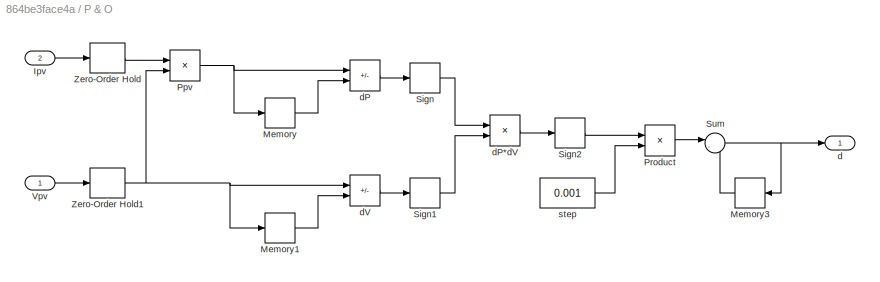
BLOCK [SubSystem] P & O
  Ports = [2, 1]
  RequestExecContextInheritance = off
BLOCK [Inport] P & O/Ipv
  Port = 2
BLOCK [Memory] P & O/Memory
  InheritSampleTime = on
BLOCK [Memory] P & O/Memory1
  InheritSampleTime = on
BLOCK [Memory] P & O/Memory3
  InheritSampleTime = on
  InitialCondition = 0.5
  NameLocation = top
BLOCK [Product] P & O/Ppv
  Ports = [2, 1]
  RndMeth = Zero
BLOCK [Product] P & O/Product
  Ports = [2, 1]
  RndMeth = Zero
BLOCK [Signum] P & O/Sign
BLOCK [Signum] P & O/Sign1
BLOCK [Signum] P & O/Sign2
BLOCK [Sum] P & O/Sum
  Inputs = |-+
  Ports = [2, 1]
BLOCK [Inport] P & O/Vpv
BLOCK [ZeroOrderHold] P & O/Zero-Order Hold
  SampleTime = 0.002
BLOCK [ZeroOrderHold] P & O/Zero-Order Hold1
  SampleTime = 0.002
BLOCK [Outport] P & O/d
BLOCK [Sum] P & O/dP
  IconShape = rectangular
  Inputs = +-
  Ports = [2, 1]
BLOCK [Product] P & O/dP*dV
  Ports = [2, 1]
  RndMeth = Zero
BLOCK [Sum] P & O/dV
  IconShape = rectangular
  Inputs = +-
  Ports = [2, 1]
BLOCK [Constant] P & O/step
  Value = 0.001
BLOCK [Display] PV Current
  Decimation = 1
  NameLocation = right
  Ports = [1]
BLOCK [Display] PV Power
  Decimation = 1
  NameLocation = right
  Ports = [1]
BLOCK [Display] PV Voltage
  Decimation = 1
  NameLocation = right
  Ports = [1]
BLOCK [Product] Product
  Ports = [2, 1]
BLOCK [Product] Product1
  Ports = [2, 1]
BLOCK [RelationalOperator] Relational Operator1
  InputSameDT = off
  OutDataTypeStr = boolean
  Ports = [2, 1]
  RndMeth = Simplest
BLOCK [Reference] Repeating Sequence  REF=simulink/Sources/Repeating
Sequence
  Ports = [0, 1]
  SourceBlock = simulink/Sources/Repeating\nSequence
  SourceProductBaseCode = SL
  SourceType = Repeating table
BLOCK [Scope] Scope
  Floating = off
  NumInputPorts = 1
  Ports = [1]
  ScopeSpecificationString = Simulink.scopes.TimeScopeBlockCfg('CurrentConfiguration', extmgr.ConfigurationSet(extmgr.Configuration('Core','General UI',true),extmgr.Configuration('Core','Source UI',true),extmgr.Configuration('Sources','WiredSimulink',true,'DataLoggingVariableName','Ppv','DataLogging',true,'DataLoggingSaveFormat','StructureWithTime'),extmgr.Configuration('Visuals','Time Domain',true,'SerializedDisplays',{struc...<+1526ch>
BLOCK [Scope] Scope1
  Floating = off
  NumInputPorts = 1
  Ports = [1]
  ScopeSpecificationString = Simulink.scopes.TimeScopeBlockCfg('CurrentConfiguration', extmgr.ConfigurationSet(extmgr.Configuration('Core','General UI',true),extmgr.Configuration('Core','Source UI',true),extmgr.Configuration('Sources','WiredSimulink',true,'DataLoggingVariableName','Vpv','DataLogging',true,'DataLoggingSaveFormat','StructureWithTime'),extmgr.Configuration('Visuals','Time Domain',true,'SerializedDisplays',{struc...<+1470ch>
BLOCK [Scope] Scope2
  Floating = off
  NumInputPorts = 1
  Ports = [1]
  ScopeSpecificationString = Simulink.scopes.TimeScopeBlockCfg('CurrentConfiguration', extmgr.ConfigurationSet(extmgr.Configuration('Core','General UI',true),extmgr.Configuration('Core','Source UI',true),extmgr.Configuration('Sources','WiredSimulink',true,'DataLoggingVariableName','gate_pulse','DataLogging',true,'DataLoggingSaveFormat','StructureWithTime'),extmgr.Configuration('Visuals','Time Domain',true,'SerializedDisplays'...<+1622ch>
BLOCK [Scope] Scope3
  Floating = off
  NumInputPorts = 1
  Ports = [1]
  ScopeSpecificationString = Simulink.scopes.TimeScopeBlockCfg('CurrentConfiguration', extmgr.ConfigurationSet(extmgr.Configuration('Core','General UI',true),extmgr.Configuration('Core','Source UI',true),extmgr.Configuration('Sources','WiredSimulink',true,'DataLoggingVariableName','Ipv','DataLogging',true,'DataLoggingSaveFormat','StructureWithTime'),extmgr.Configuration('Visuals','Time Domain',true,'SerializedDisplays',{struc...<+1466ch>
BLOCK [Scope] Scope4
  Floating = off
  NumInputPorts = 1
  Ports = [1]
  ScopeSpecificationString = Simulink.scopes.TimeScopeBlockCfg('CurrentConfiguration', extmgr.ConfigurationSet(extmgr.Configuration('Core','General UI',true),extmgr.Configuration('Core','Source UI',true),extmgr.Configuration('Sources','WiredSimulink',true,'DataLoggingVariableName','Pout','DataLogging',true,'DataLoggingSaveFormat','StructureWithTime'),extmgr.Configuration('Visuals','Time Domain',true,'SerializedDisplays',{stru...<+1483ch>
BLOCK [Scope] Scope5
  Floating = off
  NumInputPorts = 1
  Ports = [1]
  ScopeSpecificationString = Simulink.scopes.TimeScopeBlockCfg('CurrentConfiguration', extmgr.ConfigurationSet(extmgr.Configuration('Core','General UI',true),extmgr.Configuration('Core','Source UI',true),extmgr.Configuration('Sources','WiredSimulink',true,'DataLoggingVariableName','Vout','DataLogging',true,'DataLoggingSaveFormat','StructureWithTime'),extmgr.Configuration('Visuals','Time Domain',true,'SerializedDisplays',{stru...<+1479ch>
BLOCK [Scope] Scope6
  Floating = off
  NumInputPorts = 1
  Ports = [1]
  ScopeSpecificationString = Simulink.scopes.TimeScopeBlockCfg('CurrentConfiguration', extmgr.ConfigurationSet(extmgr.Configuration('Core','General UI',true),extmgr.Configuration('Core','Source UI',true),extmgr.Configuration('Sources','WiredSimulink',true,'DataLoggingVariableName','Iout','DataLogging',true,'DataLoggingSaveFormat','StructureWithTime'),extmgr.Configuration('Visuals','Time Domain',true,'SerializedDisplays',{stru...<+1469ch>
BLOCK [Scope] Scope7
  Floating = off
  NumInputPorts = 1
  Ports = [1]
  ScopeSpecificationString = Simulink.scopes.TimeScopeBlockCfg('CurrentConfiguration', extmgr.ConfigurationSet(extmgr.Configuration('Core','General UI',true),extmgr.Configuration('Core','Source UI',true),extmgr.Configuration('Sources','WiredSimulink',true,'DataLogging',true,'DataLoggingSaveFormat','StructureWithTime','DataLoggingVariableName','duty_cycle'),extmgr.Configuration('Visuals','Time Domain',true,'SerializedDisplays'...<+1450ch>
BLOCK [Reference] Voltage Measurement  REF=spsVoltageMeasurementLib/Voltage Measurement
  Ports = [0, 1, 0, 0, 0, 2]
  SourceBlock = spsVoltageMeasurementLib/Voltage Measurement
  SourceProductBaseCode = PS
  SourceType = Voltage Measurement
  UserDataPersistent = on
BLOCK [Reference] powergui  REF=spspowerguiLib/powergui
  NameLocation = top
  Ports = []
  Priority = 1
  SourceBlock = spspowerguiLib/powergui
  SourceProductBaseCode = PS
  SourceType = PSB option menu block
LINE Boost Converter/Bus Selector:1 -> Boost Converter/Scope:1
LINE Boost Converter/Bus Selector:2 -> Boost Converter/Scope1:1
LINE Boost Converter/From4:1 -> Boost Converter/IGBT:1
LINE Boost Converter/IGBT:1 -> Boost Converter/Bus Selector:1
NET Current Measurement:1 -> Goto4:1, Mean6:1
LINE Diagonal shading 7x7 TCT/	P14:1 -> Diagonal shading 7x7 TCT/Terminator13:1
LINE Diagonal shading 7x7 TCT/Constant10:1 -> Diagonal shading 7x7 TCT/PV 10:1
LINE Diagonal shading 7x7 TCT/Constant11:1 -> Diagonal shading 7x7 TCT/PV 10:2
LINE Diagonal shading 7x7 TCT/Constant12:1 -> Diagonal shading 7x7 TCT/PV 15:1
LINE Diagonal shading 7x7 TCT/Constant13:1 -> Diagonal shading 7x7 TCT/PV 15:2
LINE Diagonal shading 7x7 TCT/Constant14:1 -> Diagonal shading 7x7 TCT/PV 17:1
LINE Diagonal shading 7x7 TCT/Constant15:1 -> Diagonal shading 7x7 TCT/PV 17:2
LINE Diagonal shading 7x7 TCT/Constant16:1 -> Diagonal shading 7x7 TCT/PV 16:1
LINE Diagonal shading 7x7 TCT/Constant17:1 -> Diagonal shading 7x7 TCT/PV 16:2
LINE Diagonal shading 7x7 TCT/Constant18:1 -> Diagonal shading 7x7 TCT/PV 22:1
LINE Diagonal shading 7x7 TCT/Constant19:1 -> Diagonal shading 7x7 TCT/PV 22:2
LINE Diagonal shading 7x7 TCT/Constant1:1 -> Diagonal shading 7x7 TCT/PV 1:2
LINE Diagonal shading 7x7 TCT/Constant20:1 -> Diagonal shading 7x7 TCT/PV 36:1
LINE Diagonal shading 7x7 TCT/Constant21:1 -> Diagonal shading 7x7 TCT/PV 36:2
LINE Diagonal shading 7x7 TCT/Constant22:1 -> Diagonal shading 7x7 TCT/PV 29:1
LINE Diagonal shading 7x7 TCT/Constant23:1 -> Diagonal shading 7x7 TCT/PV 29:2
LINE Diagonal shading 7x7 TCT/Constant24:1 -> Diagonal shading 7x7 TCT/PV 31:1
LINE Diagonal shading 7x7 TCT/Constant25:1 -> Diagonal shading 7x7 TCT/PV 31:2
LINE Diagonal shading 7x7 TCT/Constant26:1 -> Diagonal shading 7x7 TCT/PV 38:1
LINE Diagonal shading 7x7 TCT/Constant27:1 -> Diagonal shading 7x7 TCT/PV 38:2
LINE Diagonal shading 7x7 TCT/Constant28:1 -> Diagonal shading 7x7 TCT/PV 37:1
LINE Diagonal shading 7x7 TCT/Constant29:1 -> Diagonal shading 7x7 TCT/PV 37:2
LINE Diagonal shading 7x7 TCT/Constant2:1 -> Diagonal shading 7x7 TCT/PV 2:1
LINE Diagonal shading 7x7 TCT/Constant30:1 -> Diagonal shading 7x7 TCT/PV 23:1
LINE Diagonal shading 7x7 TCT/Constant31:1 -> Diagonal shading 7x7 TCT/PV 23:2
LINE Diagonal shading 7x7 TCT/Constant32:1 -> Diagonal shading 7x7 TCT/PV 30:1
LINE Diagonal shading 7x7 TCT/Constant33:1 -> Diagonal shading 7x7 TCT/PV 30:2
LINE Diagonal shading 7x7 TCT/Constant34:1 -> Diagonal shading 7x7 TCT/PV 24:1
LINE Diagonal shading 7x7 TCT/Constant35:1 -> Diagonal shading 7x7 TCT/PV 24:2
LINE Diagonal shading 7x7 TCT/Constant36:1 -> Diagonal shading 7x7 TCT/PV 12:1
LINE Diagonal shading 7x7 TCT/Constant37:1 -> Diagonal shading 7x7 TCT/PV 12:2
LINE Diagonal shading 7x7 TCT/Constant38:1 -> Diagonal shading 7x7 TCT/PV 19:1
LINE Diagonal shading 7x7 TCT/Constant39:1 -> Diagonal shading 7x7 TCT/PV 19:2
LINE Diagonal shading 7x7 TCT/Constant3:1 -> Diagonal shading 7x7 TCT/PV 2:2
LINE Diagonal shading 7x7 TCT/Constant40:1 -> Diagonal shading 7x7 TCT/PV 18:1
LINE Diagonal shading 7x7 TCT/Constant41:1 -> Diagonal shading 7x7 TCT/PV 18:2
LINE Diagonal shading 7x7 TCT/Constant42:1 -> Diagonal shading 7x7 TCT/PV 4:1
LINE Diagonal shading 7x7 TCT/Constant43:1 -> Diagonal shading 7x7 TCT/PV 33:1
LINE Diagonal shading 7x7 TCT/Constant44:1 -> Diagonal shading 7x7 TCT/PV 33:2
LINE Diagonal shading 7x7 TCT/Constant45:1 -> Diagonal shading 7x7 TCT/PV 40:1
LINE Diagonal shading 7x7 TCT/Constant46:1 -> Diagonal shading 7x7 TCT/PV 40:2
LINE Diagonal shading 7x7 TCT/Constant47:1 -> Diagonal shading 7x7 TCT/PV  39:1
LINE Diagonal shading 7x7 TCT/Constant48:1 -> Diagonal shading 7x7 TCT/PV  39:2
LINE Diagonal shading 7x7 TCT/Constant49:1 -> Diagonal shading 7x7 TCT/PV 4:2
LINE Diagonal shading 7x7 TCT/Constant4:1 -> Diagonal shading 7x7 TCT/PV 8:1
LINE Diagonal shading 7x7 TCT/Constant50:1 -> Diagonal shading 7x7 TCT/PV 25:1
LINE Diagonal shading 7x7 TCT/Constant51:1 -> Diagonal shading 7x7 TCT/PV 25:2
LINE Diagonal shading 7x7 TCT/Constant52:1 -> Diagonal shading 7x7 TCT/PV 32:1
LINE Diagonal shading 7x7 TCT/Constant53:1 -> Diagonal shading 7x7 TCT/PV 32:2
LINE Diagonal shading 7x7 TCT/Constant54:1 -> Diagonal shading 7x7 TCT/PV 26:1
LINE Diagonal shading 7x7 TCT/Constant55:1 -> Diagonal shading 7x7 TCT/PV 26:2
LINE Diagonal shading 7x7 TCT/Constant56:1 -> Diagonal shading 7x7 TCT/PV 11:1
LINE Diagonal shading 7x7 TCT/Constant57:1 -> Diagonal shading 7x7 TCT/PV 11:2
LINE Diagonal shading 7x7 TCT/Constant58:1 -> Diagonal shading 7x7 TCT/PV 5:1
LINE Diagonal shading 7x7 TCT/Constant59:1 -> Diagonal shading 7x7 TCT/PV 5:2
LINE Diagonal shading 7x7 TCT/Constant5:1 -> Diagonal shading 7x7 TCT/PV 8:2
LINE Diagonal shading 7x7 TCT/Constant60:1 -> Diagonal shading 7x7 TCT/	P14:1
LINE Diagonal shading 7x7 TCT/Constant61:1 -> Diagonal shading 7x7 TCT/	P14:2
LINE Diagonal shading 7x7 TCT/Constant62:1 -> Diagonal shading 7x7 TCT/PV 21:1
LINE Diagonal shading 7x7 TCT/Constant63:1 -> Diagonal shading 7x7 TCT/PV 21:2
LINE Diagonal shading 7x7 TCT/Constant64:1 -> Diagonal shading 7x7 TCT/PV 20:1
LINE Diagonal shading 7x7 TCT/Constant65:1 -> Diagonal shading 7x7 TCT/PV 20:2
LINE Diagonal shading 7x7 TCT/Constant66:1 -> Diagonal shading 7x7 TCT/PV 6:1
LINE Diagonal shading 7x7 TCT/Constant67:1 -> Diagonal shading 7x7 TCT/PV 35:1
LINE Diagonal shading 7x7 TCT/Constant68:1 -> Diagonal shading 7x7 TCT/PV 35:2
LINE Diagonal shading 7x7 TCT/Constant69:1 -> Diagonal shading 7x7 TCT/PV 42:1
LINE Diagonal shading 7x7 TCT/Constant6:1 -> Diagonal shading 7x7 TCT/PV 9:1
LINE Diagonal shading 7x7 TCT/Constant70:1 -> Diagonal shading 7x7 TCT/PV 42:2
LINE Diagonal shading 7x7 TCT/Constant71:1 -> Diagonal shading 7x7 TCT/PV 41:1
LINE Diagonal shading 7x7 TCT/Constant72:1 -> Diagonal shading 7x7 TCT/PV 41:2
LINE Diagonal shading 7x7 TCT/Constant73:1 -> Diagonal shading 7x7 TCT/PV 6:2
LINE Diagonal shading 7x7 TCT/Constant74:1 -> Diagonal shading 7x7 TCT/PV 27:1
LINE Diagonal shading 7x7 TCT/Constant75:1 -> Diagonal shading 7x7 TCT/PV 27:2
LINE Diagonal shading 7x7 TCT/Constant76:1 -> Diagonal shading 7x7 TCT/PV 34:1
LINE Diagonal shading 7x7 TCT/Constant77:1 -> Diagonal shading 7x7 TCT/PV 34:2
LINE Diagonal shading 7x7 TCT/Constant78:1 -> Diagonal shading 7x7 TCT/PV 28:1
LINE Diagonal shading 7x7 TCT/Constant79:1 -> Diagonal shading 7x7 TCT/PV 28:2
LINE Diagonal shading 7x7 TCT/Constant7:1 -> Diagonal shading 7x7 TCT/PV 9:2
LINE Diagonal shading 7x7 TCT/Constant80:1 -> Diagonal shading 7x7 TCT/PV 13:1
LINE Diagonal shading 7x7 TCT/Constant81:1 -> Diagonal shading 7x7 TCT/PV 13:2
LINE Diagonal shading 7x7 TCT/Constant82:1 -> Diagonal shading 7x7 TCT/PV 7:1
LINE Diagonal shading 7x7 TCT/Constant83:1 -> Diagonal shading 7x7 TCT/PV 7:2
LINE Diagonal shading 7x7 TCT/Constant84:1 -> Diagonal shading 7x7 TCT/PV 43:1
LINE Diagonal shading 7x7 TCT/Constant85:1 -> Diagonal shading 7x7 TCT/PV 43:2
LINE Diagonal shading 7x7 TCT/Constant86:1 -> Diagonal shading 7x7 TCT/PV 45:1
LINE Diagonal shading 7x7 TCT/Constant87:1 -> Diagonal shading 7x7 TCT/PV 45:2
LINE Diagonal shading 7x7 TCT/Constant88:1 -> Diagonal shading 7x7 TCT/PV 44:1
LINE Diagonal shading 7x7 TCT/Constant89:1 -> Diagonal shading 7x7 TCT/PV 44:2
LINE Diagonal shading 7x7 TCT/Constant8:1 -> Diagonal shading 7x7 TCT/PV 3:1
LINE Diagonal shading 7x7 TCT/Constant90:1 -> Diagonal shading 7x7 TCT/PV 47:1
LINE Diagonal shading 7x7 TCT/Constant91:1 -> Diagonal shading 7x7 TCT/PV 47:2
LINE Diagonal shading 7x7 TCT/Constant92:1 -> Diagonal shading 7x7 TCT/PV 46:1
LINE Diagonal shading 7x7 TCT/Constant93:1 -> Diagonal shading 7x7 TCT/PV 46:2
LINE Diagonal shading 7x7 TCT/Constant94:1 -> Diagonal shading 7x7 TCT/PV 49:1
LINE Diagonal shading 7x7 TCT/Constant95:1 -> Diagonal shading 7x7 TCT/PV 49:2
LINE Diagonal shading 7x7 TCT/Constant96:1 -> Diagonal shading 7x7 TCT/PV 48:1
LINE Diagonal shading 7x7 TCT/Constant97:1 -> Diagonal shading 7x7 TCT/PV 48:2
LINE Diagonal shading 7x7 TCT/Constant9:1 -> Diagonal shading 7x7 TCT/PV 3:2
LINE Diagonal shading 7x7 TCT/Constant:1 -> Diagonal shading 7x7 TCT/PV 1:1
LINE Diagonal shading 7x7 TCT/Current Measurement1:1 -> Diagonal shading 7x7 TCT/Ipv:1
LINE Diagonal shading 7x7 TCT/PV  39:1 -> Diagonal shading 7x7 TCT/Terminator35:1
LINE Diagonal shading 7x7 TCT/PV 10:1 -> Diagonal shading 7x7 TCT/Terminator9:1
LINE Diagonal shading 7x7 TCT/PV 11:1 -> Diagonal shading 7x7 TCT/Terminator10:1
LINE Diagonal shading 7x7 TCT/PV 12:1 -> Diagonal shading 7x7 TCT/Terminator11:1
LINE Diagonal shading 7x7 TCT/PV 13:1 -> Diagonal shading 7x7 TCT/Terminator12:1
LINE Diagonal shading 7x7 TCT/PV 15:1 -> Diagonal shading 7x7 TCT/Terminator18:1
LINE Diagonal shading 7x7 TCT/PV 16:1 -> Diagonal shading 7x7 TCT/Terminator19:1
LINE Diagonal shading 7x7 TCT/PV 17:1 -> Diagonal shading 7x7 TCT/Terminator20:1
LINE Diagonal shading 7x7 TCT/PV 18:1 -> Diagonal shading 7x7 TCT/Terminator14:1
LINE Diagonal shading 7x7 TCT/PV 19:1 -> Diagonal shading 7x7 TCT/Terminator15:1
LINE Diagonal shading 7x7 TCT/PV 1:1 -> Diagonal shading 7x7 TCT/Terminator:1
LINE Diagonal shading 7x7 TCT/PV 20:1 -> Diagonal shading 7x7 TCT/Terminator16:1
LINE Diagonal shading 7x7 TCT/PV 21:1 -> Diagonal shading 7x7 TCT/Terminator17:1
LINE Diagonal shading 7x7 TCT/PV 22:1 -> Diagonal shading 7x7 TCT/Terminator25:1
LINE Diagonal shading 7x7 TCT/PV 23:1 -> Diagonal shading 7x7 TCT/Terminator26:1
LINE Diagonal shading 7x7 TCT/PV 24:1 -> Diagonal shading 7x7 TCT/Terminator27:1
LINE Diagonal shading 7x7 TCT/PV 25:1 -> Diagonal shading 7x7 TCT/Terminator21:1
LINE Diagonal shading 7x7 TCT/PV 26:1 -> Diagonal shading 7x7 TCT/Terminator22:1
LINE Diagonal shading 7x7 TCT/PV 27:1 -> Diagonal shading 7x7 TCT/Terminator23:1
LINE Diagonal shading 7x7 TCT/PV 28:1 -> Diagonal shading 7x7 TCT/Terminator24:1
LINE Diagonal shading 7x7 TCT/PV 29:1 -> Diagonal shading 7x7 TCT/Terminator32:1
LINE Diagonal shading 7x7 TCT/PV 2:1 -> Diagonal shading 7x7 TCT/Terminator1:1
LINE Diagonal shading 7x7 TCT/PV 30:1 -> Diagonal shading 7x7 TCT/Terminator33:1
LINE Diagonal shading 7x7 TCT/PV 31:1 -> Diagonal shading 7x7 TCT/Terminator34:1
LINE Diagonal shading 7x7 TCT/PV 32:1 -> Diagonal shading 7x7 TCT/Terminator28:1
LINE Diagonal shading 7x7 TCT/PV 33:1 -> Diagonal shading 7x7 TCT/Terminator29:1
LINE Diagonal shading 7x7 TCT/PV 34:1 -> Diagonal shading 7x7 TCT/Terminator30:1
LINE Diagonal shading 7x7 TCT/PV 35:1 -> Diagonal shading 7x7 TCT/Terminator31:1
LINE Diagonal shading 7x7 TCT/PV 36:1 -> Diagonal shading 7x7 TCT/Terminator39:1
LINE Diagonal shading 7x7 TCT/PV 37:1 -> Diagonal shading 7x7 TCT/Terminator40:1
LINE Diagonal shading 7x7 TCT/PV 38:1 -> Diagonal shading 7x7 TCT/Terminator41:1
LINE Diagonal shading 7x7 TCT/PV 3:1 -> Diagonal shading 7x7 TCT/Terminator2:1
LINE Diagonal shading 7x7 TCT/PV 40:1 -> Diagonal shading 7x7 TCT/Terminator36:1
LINE Diagonal shading 7x7 TCT/PV 41:1 -> Diagonal shading 7x7 TCT/Terminator37:1
LINE Diagonal shading 7x7 TCT/PV 42:1 -> Diagonal shading 7x7 TCT/Terminator38:1
LINE Diagonal shading 7x7 TCT/PV 43:1 -> Diagonal shading 7x7 TCT/Terminator46:1
LINE Diagonal shading 7x7 TCT/PV 44:1 -> Diagonal shading 7x7 TCT/Terminator47:1
LINE Diagonal shading 7x7 TCT/PV 45:1 -> Diagonal shading 7x7 TCT/Terminator48:1
LINE Diagonal shading 7x7 TCT/PV 46:1 -> Diagonal shading 7x7 TCT/Terminator42:1
LINE Diagonal shading 7x7 TCT/PV 47:1 -> Diagonal shading 7x7 TCT/Terminator43:1
LINE Diagonal shading 7x7 TCT/PV 48:1 -> Diagonal shading 7x7 TCT/Terminator44:1
LINE Diagonal shading 7x7 TCT/PV 49:1 -> Diagonal shading 7x7 TCT/Terminator45:1
LINE Diagonal shading 7x7 TCT/PV 4:1 -> Diagonal shading 7x7 TCT/Terminator3:1
LINE Diagonal shading 7x7 TCT/PV 5:1 -> Diagonal shading 7x7 TCT/Terminator4:1
LINE Diagonal shading 7x7 TCT/PV 6:1 -> Diagonal shading 7x7 TCT/Terminator5:1
LINE Diagonal shading 7x7 TCT/PV 7:1 -> Diagonal shading 7x7 TCT/Terminator6:1
LINE Diagonal shading 7x7 TCT/PV 8:1 -> Diagonal shading 7x7 TCT/Terminator7:1
LINE Diagonal shading 7x7 TCT/PV 9:1 -> Diagonal shading 7x7 TCT/Terminator8:1
LINE Diagonal shading 7x7 TCT/Voltage Measurement1:1 -> Diagonal shading 7x7 TCT/Vpv:1
NET Diagonal shading 7x7 TCT:1 -> Goto:1, Product:1
NET Diagonal shading 7x7 TCT:2 -> Goto1:1, Product:2
LINE From11:1 -> P & O:2
LINE From12:1 -> Scope:1
LINE From1:1 -> Scope3:1
LINE From2:1 -> Mean3:1
LINE From3:1 -> Scope6:1
LINE From4:1 -> Scope4:1
LINE From5:1 -> Scope5:1
LINE From6:1 -> P & O:1
LINE From8:1 -> Mean4:1
LINE From9:1 -> Mean5:1
LINE From:1 -> Scope1:1
NET Mean2:1 -> Output Voltage:1, Product1:2
LINE Mean3:1 -> PV Voltage:1
LINE Mean4:1 -> PV Power:1
LINE Mean5:1 -> PV Current:1
NET Mean6:1 -> Ouput Current:1, Product1:1
LINE Mean7:1 -> Duty Cycle:1
LINE P & O/Ipv:1 -> P & O/Zero-Order Hold:1
LINE P & O/Memory1:1 -> P & O/dV:2
LINE P & O/Memory3:1 -> P & O/Sum:2
LINE P & O/Memory:1 -> P & O/dP:2
NET P & O/Ppv:1 -> P & O/Memory:1, P & O/dP:1
LINE P & O/Product:1 -> P & O/Sum:1
LINE P & O/Sign1:1 -> P & O/dP*dV:2
LINE P & O/Sign2:1 -> P & O/Product:1
LINE P & O/Sign:1 -> P & O/dP*dV:1
NET P & O/Sum:1 -> P & O/Memory3:1, P & O/d:1
LINE P & O/Vpv:1 -> P & O/Zero-Order Hold1:1
NET P & O/Zero-Order Hold1:1 -> P & O/Memory1:1, P & O/Ppv:2, P & O/dV:1
LINE P & O/Zero-Order Hold:1 -> P & O/Ppv:1
LINE P & O/dP*dV:1 -> P & O/Sign2:1
LINE P & O/dP:1 -> P & O/Sign:1
LINE P & O/dV:1 -> P & O/Sign1:1
LINE P & O/step:1 -> P & O/Product:2
NET P & O:1 -> Mean7:1, Relational Operator1:1, Scope7:1
NET Product1:1 -> Goto2:1, Output Power:1
LINE Product:1 -> Goto6:1
NET Relational Operator1:1 -> Goto3:1, Scope2:1
LINE Repeating Sequence:1 -> Relational Operator1:2
NET Voltage Measurement:1 -> Goto5:1, Mean2:1
PLINE Boost Converter/+i:RConn1 -- Boost Converter/L:LConn1
PNET net1: Boost Converter/+o:RConn1 -- Boost Converter/C:LConn1 -- Boost Converter/D:RConn1
PNET net2: Boost Converter/-i:RConn1 -- Boost Converter/-o:RConn1 -- Boost Converter/C:RConn1 -- Boost Converter/IGBT:RConn1
PNET net3: Boost Converter/D:LConn1 -- Boost Converter/IGBT:LConn1 -- Boost Converter/L:RConn1
PNET net4: Boost Converter:LConn1 -- Diagonal shading 7x7 TCT:RConn1 -- Input Capacitor:LConn1
PNET net5: Boost Converter:LConn2 -- Diagonal shading 7x7 TCT:RConn2 -- Input Capacitor:RConn1
PLINE Boost Converter:RConn1 -- Current Measurement:LConn1
PNET net6: Boost Converter:RConn2 -- Load R:RConn1 -- Voltage Measurement:LConn2
PNET net7: Current Measurement:RConn1 -- Load R:LConn1 -- Voltage Measurement:LConn1
PNET net8: Diagonal shading 7x7 TCT/	P14:RConn1 -- Diagonal shading 7x7 TCT/Diode30:LConn1 -- Diagonal shading 7x7 TCT/Diode31:LConn1 -- Diagonal shading 7x7 TCT/Diode32:LConn1 -- Diagonal shading 7x7 TCT/Diode33:RConn1 -- Diagonal shading 7x7 TCT/Diode34:RConn1 -- Diagonal shading 7x7 TCT/Diode35:LConn1 -- Diagonal shading 7x7 TCT/Diode36:RConn1 -- Diagonal shading 7x7 TCT/Diode37:LConn1 -- Diagonal shading 7x7 TCT/Diode38:RConn1 -- Diagonal shading 7x7 TCT/Diode39:RConn1 -- Diagonal shading 7x7 TCT/Diode40:LConn1 -- Diagonal shading 7x7 TCT/Diode41:RConn1 -- Diagonal shading 7x7 TCT/Diode47:LConn1 -- Diagonal shading 7x7 TCT/Diode48:RConn1 -- Diagonal shading 7x7 TCT/PV 13:RConn2 -- Diagonal shading 7x7 TCT/PV 20:RConn2 -- Diagonal shading 7x7 TCT/PV 21:RConn1 -- Diagonal shading 7x7 TCT/PV 27:RConn2 -- Diagonal shading 7x7 TCT/PV 28:RConn1 -- Diagonal shading 7x7 TCT/PV 34:RConn2 -- Diagonal shading 7x7 TCT/PV 35:RConn1 -- Diagonal shading 7x7 TCT/PV 41:RConn2 -- Diagonal shading 7x7 TCT/PV 42:RConn1 -- Diagonal shading 7x7 TCT/PV 48:RConn2 -- Diagonal shading 7x7 TCT/PV 49:RConn1 -- Diagonal shading 7x7 TCT/PV 6:RConn2 -- Diagonal shading 7x7 TCT/PV 7:RConn1
PNET net9: Diagonal shading 7x7 TCT/	P14:RConn2 -- Diagonal shading 7x7 TCT/-V:RConn1 -- Diagonal shading 7x7 TCT/Diode33:LConn1 -- Diagonal shading 7x7 TCT/Diode34:LConn1 -- Diagonal shading 7x7 TCT/Diode36:LConn1 -- Diagonal shading 7x7 TCT/Diode38:LConn1 -- Diagonal shading 7x7 TCT/Diode39:LConn1 -- Diagonal shading 7x7 TCT/Diode41:LConn1 -- Diagonal shading 7x7 TCT/Diode48:LConn1 -- Diagonal shading 7x7 TCT/PV 21:RConn2 -- Diagonal shading 7x7 TCT/PV 28:RConn2 -- Diagonal shading 7x7 TCT/PV 35:RConn2 -- Diagonal shading 7x7 TCT/PV 42:RConn2 -- Diagonal shading 7x7 TCT/PV 49:RConn2 -- Diagonal shading 7x7 TCT/PV 7:RConn2 -- Diagonal shading 7x7 TCT/Voltage Measurement1:LConn2
PLINE Diagonal shading 7x7 TCT/+V:RConn1 -- Diagonal shading 7x7 TCT/Current Measurement1:RConn1
PNET net10: Diagonal shading 7x7 TCT/Current Measurement1:LConn1 -- Diagonal shading 7x7 TCT/Diode52:RConn1 -- Diagonal shading 7x7 TCT/Diode53:RConn1 -- Diagonal shading 7x7 TCT/Diode54:RConn1 -- Diagonal shading 7x7 TCT/Diode55:RConn1 -- Diagonal shading 7x7 TCT/Diode56:RConn1 -- Diagonal shading 7x7 TCT/Diode57:RConn1 -- Diagonal shading 7x7 TCT/Diode58:RConn1 -- Diagonal shading 7x7 TCT/Voltage Measurement1:LConn1
PNET net11: Diagonal shading 7x7 TCT/Diode10:LConn1 -- Diagonal shading 7x7 TCT/Diode11:LConn1 -- Diagonal shading 7x7 TCT/Diode12:RConn1 -- Diagonal shading 7x7 TCT/Diode13:RConn1 -- Diagonal shading 7x7 TCT/Diode16:RConn1 -- Diagonal shading 7x7 TCT/Diode1:RConn1 -- Diagonal shading 7x7 TCT/Diode2:LConn1 -- Diagonal shading 7x7 TCT/Diode3:RConn1 -- Diagonal shading 7x7 TCT/Diode42:LConn1 -- Diagonal shading 7x7 TCT/Diode43:RConn1 -- Diagonal shading 7x7 TCT/Diode6:LConn1 -- Diagonal shading 7x7 TCT/Diode7:RConn1 -- Diagonal shading 7x7 TCT/Diode9:LConn1 -- Diagonal shading 7x7 TCT/Diode:LConn1 -- Diagonal shading 7x7 TCT/PV 15:RConn2 -- Diagonal shading 7x7 TCT/PV 16:RConn1 -- Diagonal shading 7x7 TCT/PV 1:RConn2 -- Diagonal shading 7x7 TCT/PV 22:RConn2 -- Diagonal shading 7x7 TCT/PV 23:RConn1 -- Diagonal shading 7x7 TCT/PV 29:RConn2 -- Diagonal shading 7x7 TCT/PV 2:RConn1 -- Diagonal shading 7x7 TCT/PV 30:RConn1 -- Diagonal shading 7x7 TCT/PV 36:RConn2 -- Diagonal shading 7x7 TCT/PV 37:RConn1 -- Diagonal shading 7x7 TCT/PV 43:RConn2 -- Diagonal shading 7x7 TCT/PV 44:RConn1 -- Diagonal shading 7x7 TCT/PV 8:RConn2 -- Diagonal shading 7x7 TCT/PV 9:RConn1
PNET net12: Diagonal shading 7x7 TCT/Diode10:RConn1 -- Diagonal shading 7x7 TCT/Diode54:LConn1 -- Diagonal shading 7x7 TCT/PV 29:RConn1
PNET net13: Diagonal shading 7x7 TCT/Diode11:RConn1 -- Diagonal shading 7x7 TCT/Diode55:LConn1 -- Diagonal shading 7x7 TCT/PV 36:RConn1
PNET net14: Diagonal shading 7x7 TCT/Diode12:LConn1 -- Diagonal shading 7x7 TCT/Diode13:LConn1 -- Diagonal shading 7x7 TCT/Diode14:RConn1 -- Diagonal shading 7x7 TCT/Diode15:RConn1 -- Diagonal shading 7x7 TCT/Diode16:LConn1 -- Diagonal shading 7x7 TCT/Diode17:RConn1 -- Diagonal shading 7x7 TCT/Diode1:LConn1 -- Diagonal shading 7x7 TCT/Diode3:LConn1 -- Diagonal shading 7x7 TCT/Diode43:LConn1 -- Diagonal shading 7x7 TCT/Diode44:RConn1 -- Diagonal shading 7x7 TCT/Diode4:RConn1 -- Diagonal shading 7x7 TCT/Diode5:RConn1 -- Diagonal shading 7x7 TCT/Diode7:LConn1 -- Diagonal shading 7x7 TCT/Diode8:RConn1 -- Diagonal shading 7x7 TCT/PV 10:RConn1 -- Diagonal shading 7x7 TCT/PV 16:RConn2 -- Diagonal shading 7x7 TCT/PV 17:RConn1 -- Diagonal shading 7x7 TCT/PV 23:RConn2 -- Diagonal shading 7x7 TCT/PV 24:RConn1 -- Diagonal shading 7x7 TCT/PV 2:RConn2 -- Diagonal shading 7x7 TCT/PV 30:RConn2 -- Diagonal shading 7x7 TCT/PV 31:RConn1 -- Diagonal shading 7x7 TCT/PV 37:RConn2 -- Diagonal shading 7x7 TCT/PV 38:RConn1 -- Diagonal shading 7x7 TCT/PV 3:RConn1 -- Diagonal shading 7x7 TCT/PV 44:RConn2 -- Diagonal shading 7x7 TCT/PV 45:RConn1 -- Diagonal shading 7x7 TCT/PV 9:RConn2
PNET net15: Diagonal shading 7x7 TCT/Diode14:LConn1 -- Diagonal shading 7x7 TCT/Diode15:LConn1 -- Diagonal shading 7x7 TCT/Diode17:LConn1 -- Diagonal shading 7x7 TCT/Diode18:RConn1 -- Diagonal shading 7x7 TCT/Diode19:RConn1 -- Diagonal shading 7x7 TCT/Diode20:RConn1 -- Diagonal shading 7x7 TCT/Diode23:RConn1 -- Diagonal shading 7x7 TCT/Diode25:RConn1 -- Diagonal shading 7x7 TCT/Diode28:RConn1 -- Diagonal shading 7x7 TCT/Diode44:LConn1 -- Diagonal shading 7x7 TCT/Diode45:RConn1 -- Diagonal shading 7x7 TCT/Diode4:LConn1 -- Diagonal shading 7x7 TCT/Diode5:LConn1 -- Diagonal shading 7x7 TCT/Diode8:LConn1 -- Diagonal shading 7x7 TCT/PV  39:RConn1 -- Diagonal shading 7x7 TCT/PV 10:RConn2 -- Diagonal shading 7x7 TCT/PV 11:RConn1 -- Diagonal shading 7x7 TCT/PV 17:RConn2 -- Diagonal shading 7x7 TCT/PV 18:RConn1 -- Diagonal shading 7x7 TCT/PV 24:RConn2 -- Diagonal shading 7x7 TCT/PV 25:RConn1 -- Diagonal shading 7x7 TCT/PV 31:RConn2 -- Diagonal shading 7x7 TCT/PV 32:RConn1 -- Diagonal shading 7x7 TCT/PV 38:RConn2 -- Diagonal shading 7x7 TCT/PV 3:RConn2 -- Diagonal shading 7x7 TCT/PV 45:RConn2 -- Diagonal shading 7x7 TCT/PV 46:RConn1 -- Diagonal shading 7x7 TCT/PV 4:RConn1
PNET net16: Diagonal shading 7x7 TCT/Diode18:LConn1 -- Diagonal shading 7x7 TCT/Diode19:LConn1 -- Diagonal shading 7x7 TCT/Diode20:LConn1 -- Diagonal shading 7x7 TCT/Diode21:RConn1 -- Diagonal shading 7x7 TCT/Diode22:RConn1 -- Diagonal shading 7x7 TCT/Diode23:LConn1 -- Diagonal shading 7x7 TCT/Diode24:RConn1 -- Diagonal shading 7x7 TCT/Diode25:LConn1 -- Diagonal shading 7x7 TCT/Diode26:RConn1 -- Diagonal shading 7x7 TCT/Diode27:RConn1 -- Diagonal shading 7x7 TCT/Diode28:LConn1 -- Diagonal shading 7x7 TCT/Diode29:RConn1 -- Diagonal shading 7x7 TCT/Diode45:LConn1 -- Diagonal shading 7x7 TCT/Diode46:RConn1 -- Diagonal shading 7x7 TCT/PV  39:RConn2 -- Diagonal shading 7x7 TCT/PV 11:RConn2 -- Diagonal shading 7x7 TCT/PV 12:RConn1 -- Diagonal shading 7x7 TCT/PV 18:RConn2 -- Diagonal shading 7x7 TCT/PV 19:RConn1 -- Diagonal shading 7x7 TCT/PV 25:RConn2 -- Diagonal shading 7x7 TCT/PV 26:RConn1 -- Diagonal shading 7x7 TCT/PV 32:RConn2 -- Diagonal shading 7x7 TCT/PV 33:RConn1 -- Diagonal shading 7x7 TCT/PV 40:RConn1 -- Diagonal shading 7x7 TCT/PV 46:RConn2 -- Diagonal shading 7x7 TCT/PV 47:RConn1 -- Diagonal shading 7x7 TCT/PV 4:RConn2 -- Diagonal shading 7x7 TCT/PV 5:RConn1
PNET net17: Diagonal shading 7x7 TCT/Diode21:LConn1 -- Diagonal shading 7x7 TCT/Diode22:LConn1 -- Diagonal shading 7x7 TCT/Diode24:LConn1 -- Diagonal shading 7x7 TCT/Diode26:LConn1 -- Diagonal shading 7x7 TCT/Diode27:LConn1 -- Diagonal shading 7x7 TCT/Diode29:LConn1 -- Diagonal shading 7x7 TCT/Diode30:RConn1 -- Diagonal shading 7x7 TCT/Diode31:RConn1 -- Diagonal shading 7x7 TCT/Diode32:RConn1 -- Diagonal shading 7x7 TCT/Diode35:RConn1 -- Diagonal shading 7x7 TCT/Diode37:RConn1 -- Diagonal shading 7x7 TCT/Diode40:RConn1 -- Diagonal shading 7x7 TCT/Diode46:LConn1 -- Diagonal shading 7x7 TCT/Diode47:RConn1 -- Diagonal shading 7x7 TCT/PV 12:RConn2 -- Diagonal shading 7x7 TCT/PV 13:RConn1 -- Diagonal shading 7x7 TCT/PV 19:RConn2 -- Diagonal shading 7x7 TCT/PV 20:RConn1 -- Diagonal shading 7x7 TCT/PV 26:RConn2 -- Diagonal shading 7x7 TCT/PV 27:RConn1 -- Diagonal shading 7x7 TCT/PV 33:RConn2 -- Diagonal shading 7x7 TCT/PV 34:RConn1 -- Diagonal shading 7x7 TCT/PV 40:RConn2 -- Diagonal shading 7x7 TCT/PV 41:RConn1 -- Diagonal shading 7x7 TCT/PV 47:RConn2 -- Diagonal shading 7x7 TCT/PV 48:RConn1 -- Diagonal shading 7x7 TCT/PV 5:RConn2 -- Diagonal shading 7x7 TCT/PV 6:RConn1
PNET net18: Diagonal shading 7x7 TCT/Diode2:RConn1 -- Diagonal shading 7x7 TCT/Diode53:LConn1 -- Diagonal shading 7x7 TCT/PV 8:RConn1
PNET net19: Diagonal shading 7x7 TCT/Diode42:RConn1 -- Diagonal shading 7x7 TCT/Diode56:LConn1 -- Diagonal shading 7x7 TCT/PV 43:RConn1
PNET net20: Diagonal shading 7x7 TCT/Diode52:LConn1 -- Diagonal shading 7x7 TCT/Diode:RConn1 -- Diagonal shading 7x7 TCT/PV 1:RConn1
PNET net21: Diagonal shading 7x7 TCT/Diode57:LConn1 -- Diagonal shading 7x7 TCT/Diode6:RConn1 -- Diagonal shading 7x7 TCT/PV 15:RConn1
PNET net22: Diagonal shading 7x7 TCT/Diode58:LConn1 -- Diagonal shading 7x7 TCT/Diode9:RConn1 -- Diagonal shading 7x7 TCT/PV 22:RConn1
note: NET lines group one-source signal fan-out (src -> all destinations, sorted); 1:1 wires keep LINE; PNET lines group multi-terminal physical nets as a canonical sorted terminal list (undirected conserving connections); 2-terminal nets keep the pairwise PLINE form
